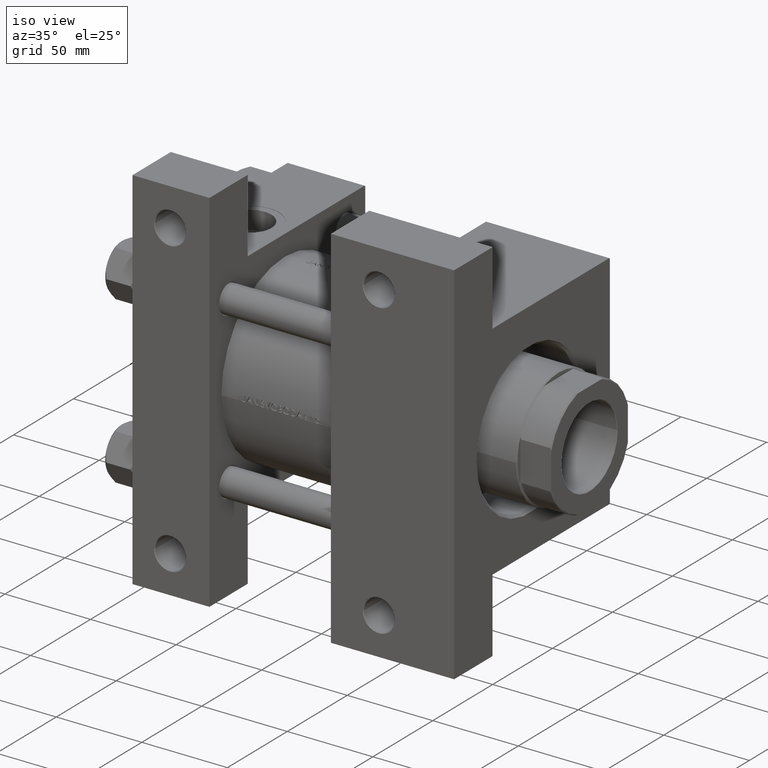
[diagram: clean part render]
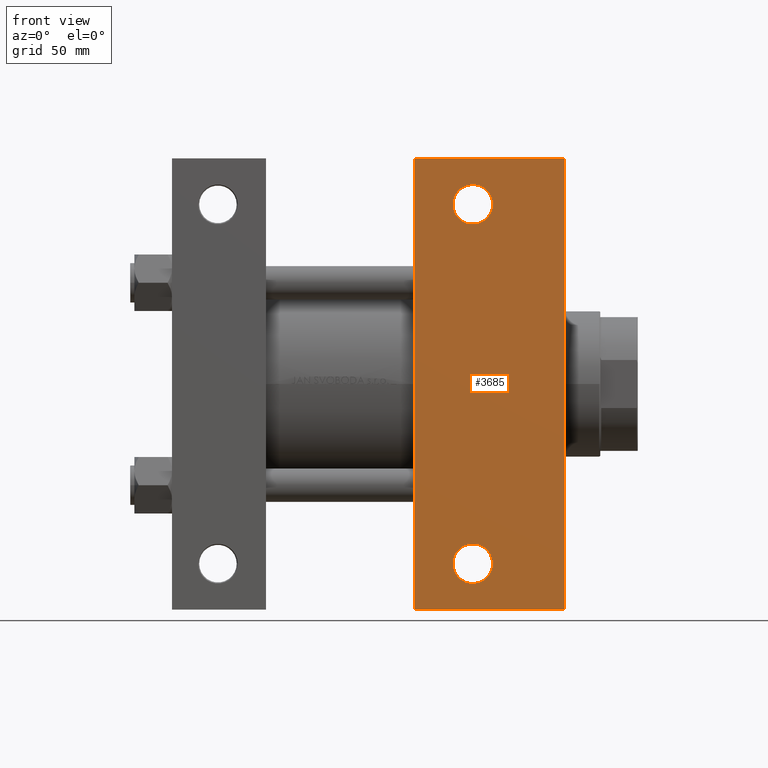
[diagram: tour spotlight — one face highlighted and labeled with its STEP entity id]
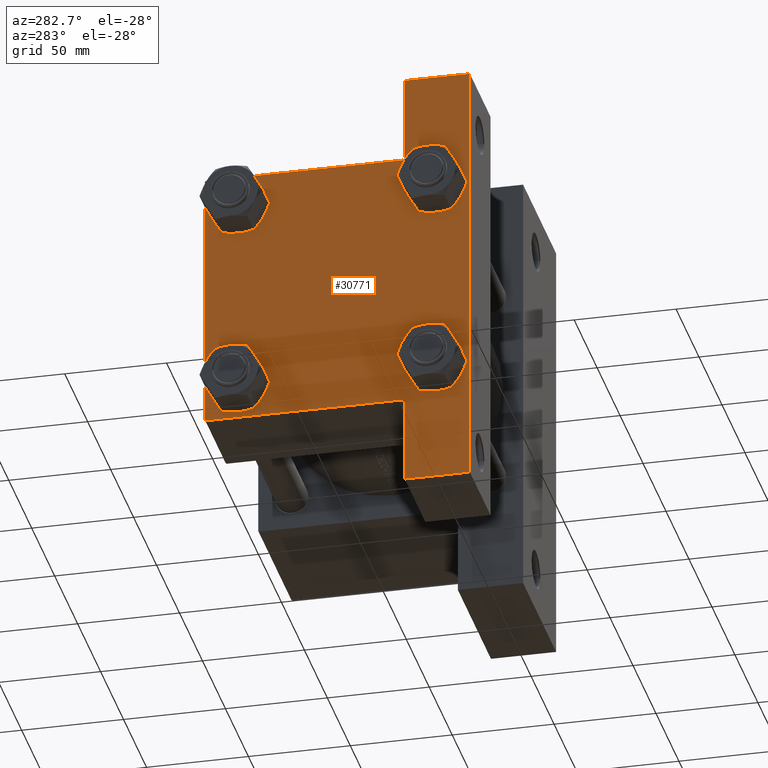
[diagram: tour spotlight — one face highlighted and labeled with its STEP entity id]
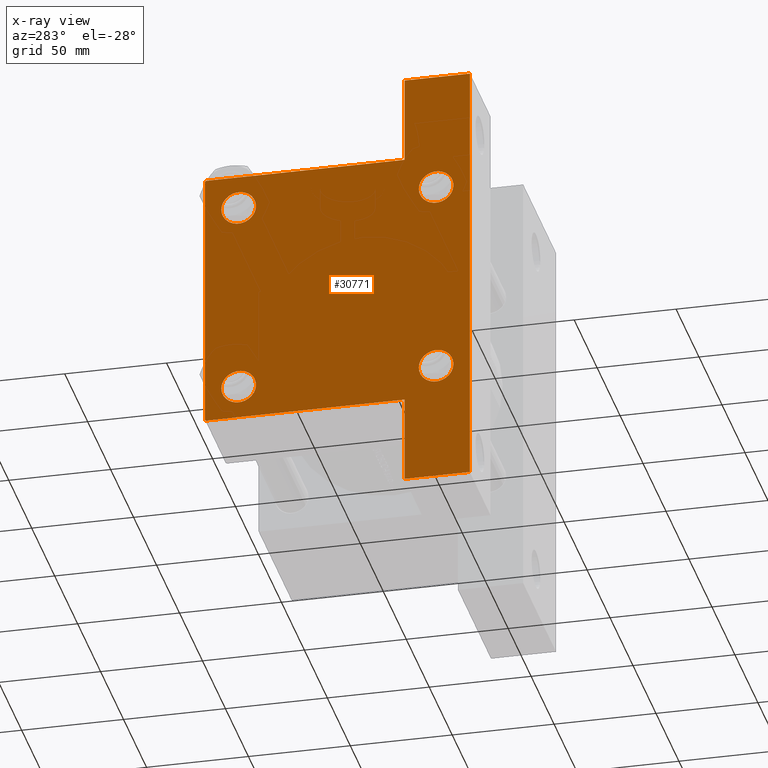
[diagram: x-ray of the same camera — body ghosted, this tour face saturated]
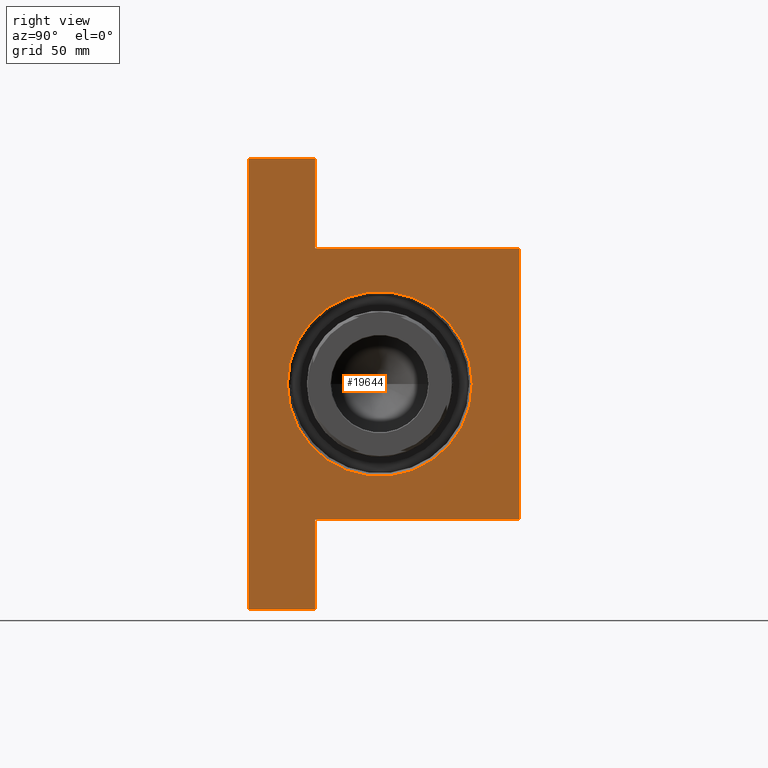
[diagram: tour spotlight — one face highlighted and labeled with its STEP entity id]
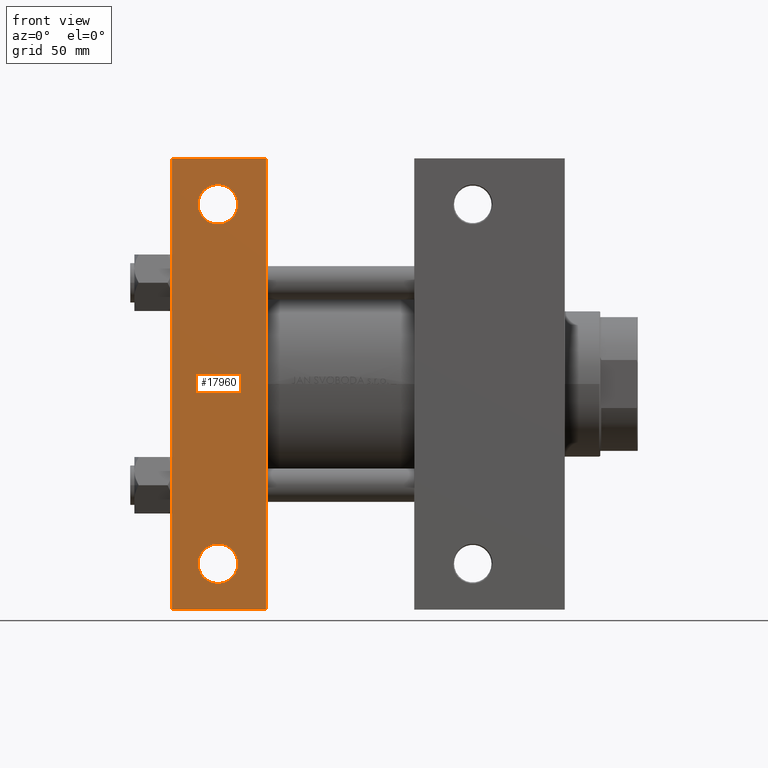
[diagram: tour spotlight — one face highlighted and labeled with its STEP entity id]
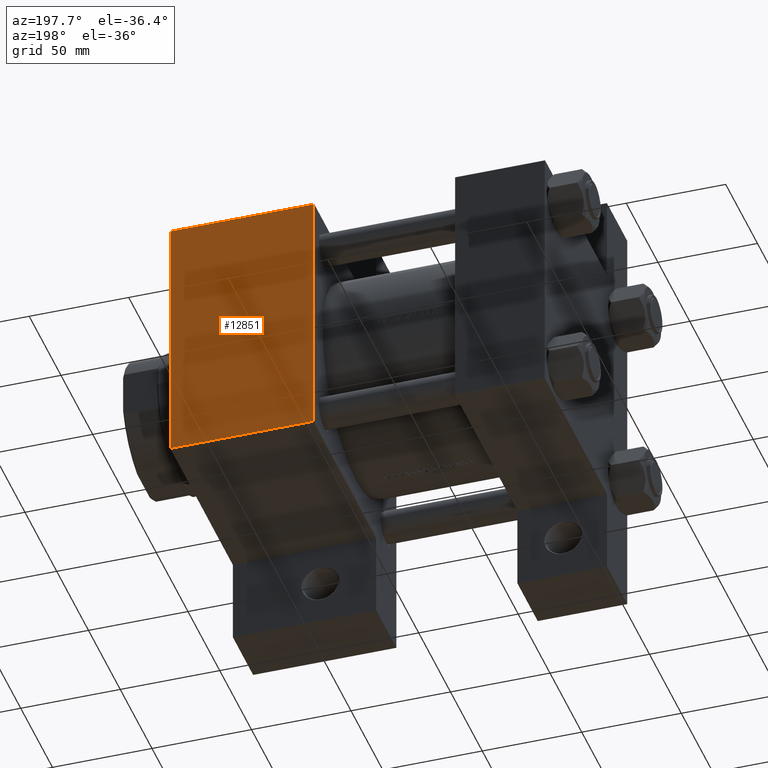
[diagram: tour spotlight — one face highlighted and labeled with its STEP entity id]
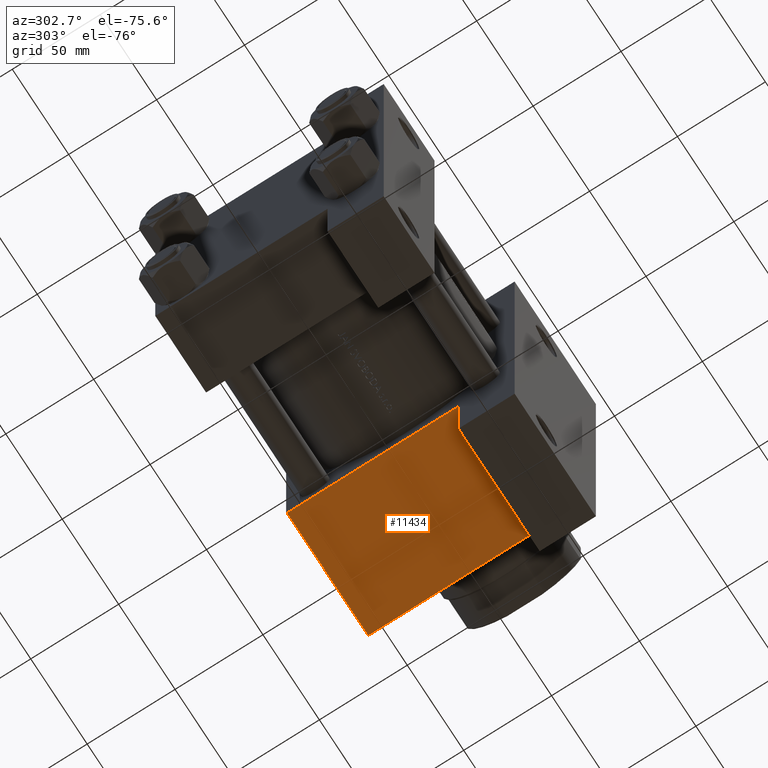
[diagram: tour spotlight — one face highlighted and labeled with its STEP entity id]
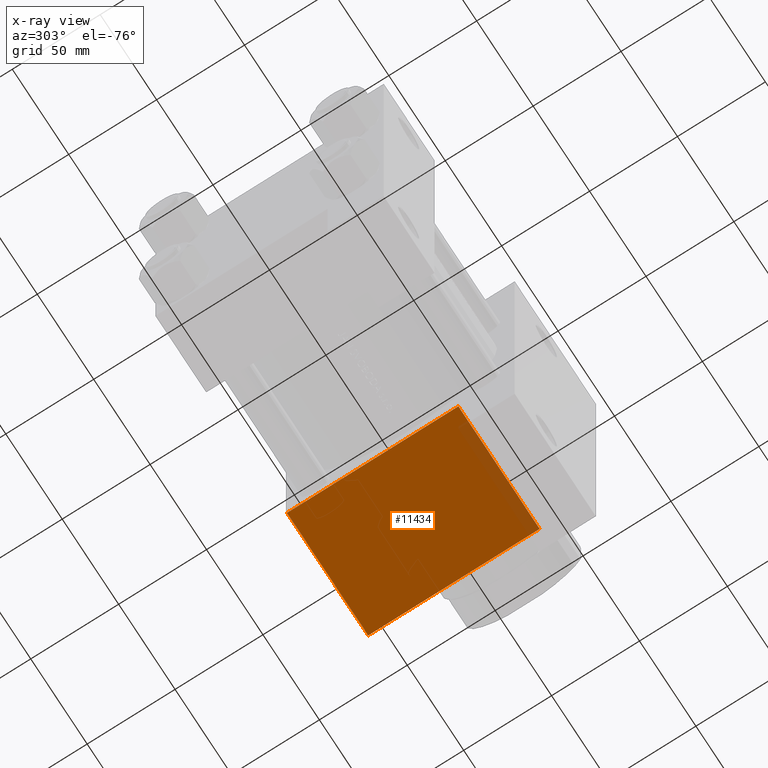
[diagram: x-ray of the same camera — body ghosted, this tour face saturated]
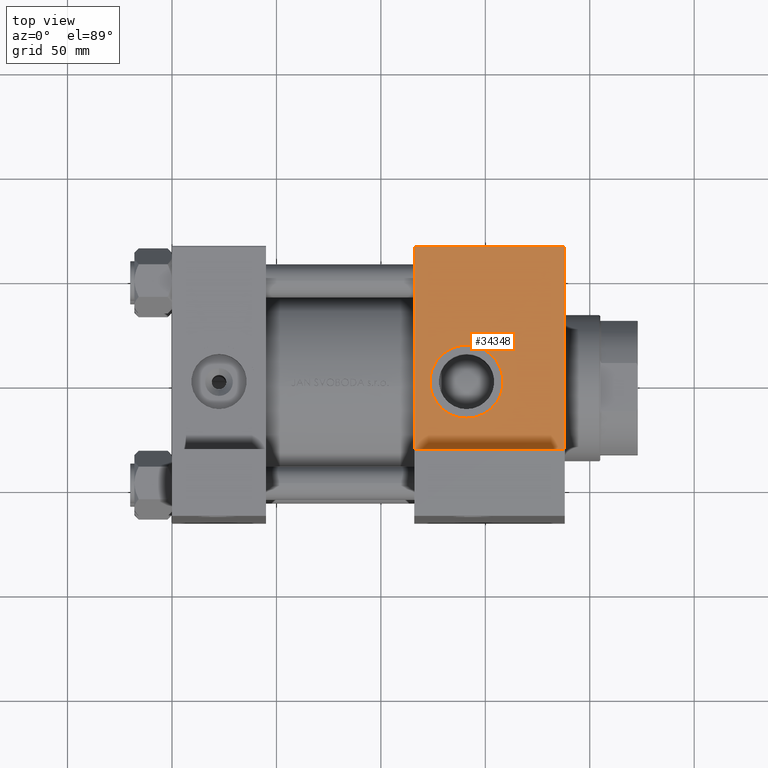
[diagram: tour spotlight — one face highlighted and labeled with its STEP entity id]
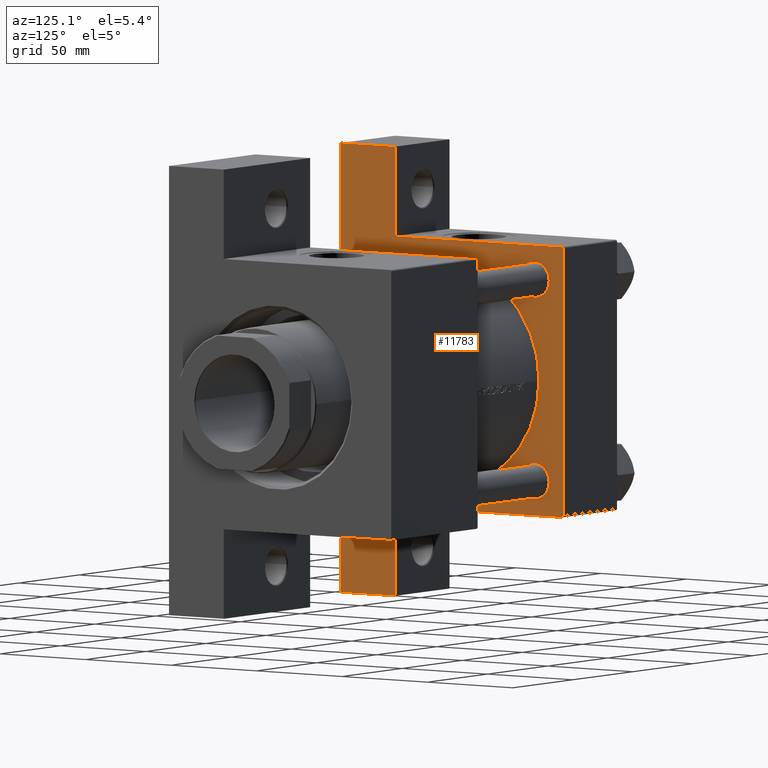
[diagram: tour spotlight — one face highlighted and labeled with its STEP entity id]
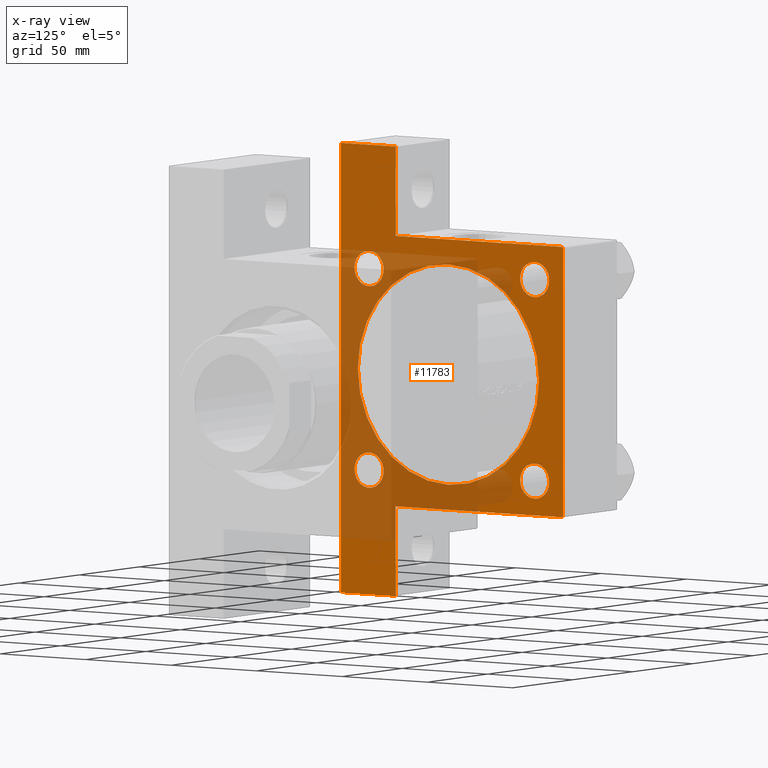
[diagram: x-ray of the same camera — body ghosted, this tour face saturated]
A machine part: a face-by-face anatomy tour. The part has 1135 B-rep faces; the first image is the clean iso view, then the 8 largest visible faces are spotlighted one at a time (largest first), each with its STEP entity span.

Face 1 — front view, entity #3685. In plain terms, the highlighted planar face has unit normal (0, -1, -0).
Definition (entity closure, byte-faithful):
#808 = AXIS2_PLACEMENT_3D ( 'NONE', #13969, #1849, #39044 ) ;
#1849 = DIRECTION ( 'NONE',  ( 0.000000000000000000, 2.135044278125300850E-16, -1.000000000000000000 ) ) ;
#2352 = CIRCLE ( 'NONE', #42808, 9.499499999999938993 ) ;
#2447 = EDGE_CURVE ( 'NONE', #20011, #12848, #2352, .T. ) ;
#2811 = PLANE ( 'NONE',  #808 ) ;
#2940 = CARTESIAN_POINT ( 'NONE',  ( 116.0000000000000000, 108.0000000000000000, -65.00000000000000000 ) ) ;
#3685 = ADVANCED_FACE ( 'NONE', ( #32473, #10072, #24440 ), #2811, .T. ) ;
#4010 = AXIS2_PLACEMENT_3D ( 'NONE', #44322, #40685, #7378 ) ;
#5141 = EDGE_CURVE ( 'NONE', #12848, #20011, #19458, .T. ) ;
#5198 = CARTESIAN_POINT ( 'NONE',  ( 144.0000000000000284, 86.00000000000000000, -64.99999999999998579 ) ) ;
#5629 = DIRECTION ( 'NONE',  ( 0.000000000000000000, 1.000000000000000000, 0.000000000000000000 ) ) ;
#5661 = EDGE_CURVE ( 'NONE', #27191, #6695, #46680, .T. ) ;
#6236 = VECTOR ( 'NONE', #7071, 1000.000000000000000 ) ;
#6695 = VERTEX_POINT ( 'NONE', #26571 ) ;
#7071 = DIRECTION ( 'NONE',  ( 1.000000000000000000, -3.854941057726239576E-16, 0.000000000000000000 ) ) ;
#7378 = DIRECTION ( 'NONE',  ( 0.000000000000000000, 1.000000000000000000, 0.000000000000000000 ) ) ;
#7388 = CARTESIAN_POINT ( 'NONE',  ( 144.0000000000000284, -86.00000000000000000, -65.00000000000001421 ) ) ;
#7812 = AXIS2_PLACEMENT_3D ( 'NONE', #24810, #20441, #5629 ) ;
#8322 = DIRECTION ( 'NONE',  ( 0.000000000000000000, 1.000000000000000000, 0.000000000000000000 ) ) ;
#10072 = FACE_BOUND ( 'NONE', #25061, .T. ) ;
#11429 = CARTESIAN_POINT ( 'NONE',  ( 115.9999999999999716, -107.9999999999999716, -65.00000000000000000 ) ) ;
#11446 = ORIENTED_EDGE ( 'NONE', *, *, #22128, .F. ) ;
#11510 = VERTEX_POINT ( 'NONE', #30069 ) ;
#12422 = EDGE_LOOP ( 'NONE', ( #11446, #25411, #30382, #25644 ) ) ;
#12848 = VERTEX_POINT ( 'NONE', #15903 ) ;
#13969 = CARTESIAN_POINT ( 'NONE',  ( 188.0000000000000000, 65.00000000000002842, -64.99999999999998579 ) ) ;
#14603 = LINE ( 'NONE', #11429, #46295 ) ;
#15903 = CARTESIAN_POINT ( 'NONE',  ( 153.4994999999999550, -86.00000000000000000, -65.00000000000001421 ) ) ;
#16885 = DIRECTION ( 'NONE',  ( 0.000000000000000000, -1.000000000000000000, -2.135044278125300850E-16 ) ) ;
#17048 = VECTOR ( 'NONE', #16885, 1000.000000000000000 ) ;
#18126 = EDGE_CURVE ( 'NONE', #6695, #27191, #46953, .T. ) ;
#19458 = CIRCLE ( 'NONE', #7812, 9.499499999999938993 ) ;
#19519 = DIRECTION ( 'NONE',  ( 0.000000000000000000, 1.000000000000000000, 0.000000000000000000 ) ) ;
#19859 = CARTESIAN_POINT ( 'NONE',  ( 153.4994999999998129, 86.00000000000000000, -64.99999999999998579 ) ) ;
#20011 = VERTEX_POINT ( 'NONE', #30436 ) ;
#20441 = DIRECTION ( 'NONE',  ( -0.000000000000000000, -2.135044278125300850E-16, 1.000000000000000000 ) ) ;
#21107 = CARTESIAN_POINT ( 'NONE',  ( 115.9999999999999716, -107.9999999999999716, -65.00000000000000000 ) ) ;
#22128 = EDGE_CURVE ( 'NONE', #41497, #32889, #34180, .T. ) ;
#23704 = CARTESIAN_POINT ( 'NONE',  ( 115.9999999999999858, 65.00000000000002842, -64.99999999999998579 ) ) ;
#24186 = LINE ( 'NONE', #46314, #17048 ) ;
#24440 = FACE_OUTER_BOUND ( 'NONE', #12422, .T. ) ;
#24810 = CARTESIAN_POINT ( 'NONE',  ( 144.0000000000000284, -86.00000000000000000, -65.00000000000001421 ) ) ;
#25052 = LINE ( 'NONE', #2940, #6236 ) ;
#25061 = EDGE_LOOP ( 'NONE', ( #32925, #29216 ) ) ;
#25365 = VECTOR ( 'NONE', #27590, 1000.000000000000000 ) ;
#25411 = ORIENTED_EDGE ( 'NONE', *, *, #41030, .T. ) ;
#25474 = ORIENTED_EDGE ( 'NONE', *, *, #18126, .T. ) ;
#25644 = ORIENTED_EDGE ( 'NONE', *, *, #26785, .T. ) ;
#25858 = DIRECTION ( 'NONE',  ( -0.000000000000000000, -2.135044278125300850E-16, 1.000000000000000000 ) ) ;
#26571 = CARTESIAN_POINT ( 'NONE',  ( 134.5005000000002156, 86.00000000000000000, -64.99999999999998579 ) ) ;
#26785 = EDGE_CURVE ( 'NONE', #11510, #32889, #14603, .T. ) ;
#27191 = VERTEX_POINT ( 'NONE', #19859 ) ;
#27467 = CARTESIAN_POINT ( 'NONE',  ( 187.9999999999999716, 107.9999999999999716, -65.00000000000000000 ) ) ;
#27590 = DIRECTION ( 'NONE',  ( 0.000000000000000000, -1.000000000000000000, -2.135044278125300850E-16 ) ) ;
#29216 = ORIENTED_EDGE ( 'NONE', *, *, #5141, .T. ) ;
#29438 = DIRECTION ( 'NONE',  ( -1.000000000000000000, -0.000000000000000000, -0.000000000000000000 ) ) ;
#30018 = EDGE_LOOP ( 'NONE', ( #25474, #34349 ) ) ;
#30069 = CARTESIAN_POINT ( 'NONE',  ( 187.9999999999999432, -107.9999999999999716, -65.00000000000000000 ) ) ;
#30382 = ORIENTED_EDGE ( 'NONE', *, *, #39311, .T. ) ;
#30436 = CARTESIAN_POINT ( 'NONE',  ( 134.5005000000000734, -86.00000000000000000, -65.00000000000001421 ) ) ;
#32473 = FACE_BOUND ( 'NONE', #30018, .T. ) ;
#32889 = VERTEX_POINT ( 'NONE', #21107 ) ;
#32925 = ORIENTED_EDGE ( 'NONE', *, *, #2447, .T. ) ;
#34180 = LINE ( 'NONE', #23704, #25365 ) ;
#34349 = ORIENTED_EDGE ( 'NONE', *, *, #5661, .T. ) ;
#35357 = VERTEX_POINT ( 'NONE', #27467 ) ;
#39044 = DIRECTION ( 'NONE',  ( 0.000000000000000000, 1.000000000000000000, 2.135044278125300850E-16 ) ) ;
#39311 = EDGE_CURVE ( 'NONE', #35357, #11510, #24186, .T. ) ;
#39539 = CARTESIAN_POINT ( 'NONE',  ( 116.0000000000000000, 108.0000000000000000, -65.00000000000000000 ) ) ;
#40685 = DIRECTION ( 'NONE',  ( -0.000000000000000000, -2.135044278125300850E-16, 1.000000000000000000 ) ) ;
#41030 = EDGE_CURVE ( 'NONE', #41497, #35357, #25052, .T. ) ;
#41497 = VERTEX_POINT ( 'NONE', #39539 ) ;
#42305 = AXIS2_PLACEMENT_3D ( 'NONE', #5198, #42390, #19519 ) ;
#42390 = DIRECTION ( 'NONE',  ( -0.000000000000000000, -2.135044278125300850E-16, 1.000000000000000000 ) ) ;
#42808 = AXIS2_PLACEMENT_3D ( 'NONE', #7388, #25858, #8322 ) ;
#44322 = CARTESIAN_POINT ( 'NONE',  ( 144.0000000000000284, 86.00000000000000000, -64.99999999999998579 ) ) ;
#46295 = VECTOR ( 'NONE', #29438, 1000.000000000000000 ) ;
#46314 = CARTESIAN_POINT ( 'NONE',  ( 188.0000000000000000, 65.00000000000002842, -64.99999999999998579 ) ) ;
#46680 = CIRCLE ( 'NONE', #4010, 9.499499999999800437 ) ;
#46953 = CIRCLE ( 'NONE', #42305, 9.499499999999800437 ) ;

Face 2 — auxiliary view, entity #30771. An x-ray twin of the same camera follows (body ghosted, this face saturated) — the face is partly hidden behind the body. In plain terms, the highlighted planar face has unit normal (-1, 0, -0).
Definition (entity closure, byte-faithful):
#300 = DIRECTION ( 'NONE',  ( 0.000000000000000000, 0.000000000000000000, 1.000000000000000000 ) ) ;
#372 = CARTESIAN_POINT ( 'NONE',  ( 2.598273009909439483E-14, 108.0000000000000284, -33.00000000000000000 ) ) ;
#576 = CARTESIAN_POINT ( 'NONE',  ( 0.000000000000000000, 48.45000000000000995, -56.95000000000002416 ) ) ;
#1030 = VERTEX_POINT ( 'NONE', #5038 ) ;
#1036 = CARTESIAN_POINT ( 'NONE',  ( 0.000000000000000000, 64.74999999999998579, 64.74999999999998579 ) ) ;
#2279 = VERTEX_POINT ( 'NONE', #20279 ) ;
#2297 = VECTOR ( 'NONE', #10669, 1000.000000000000000 ) ;
#2698 = CARTESIAN_POINT ( 'NONE',  ( 0.000000000000000000, -48.44999999999999574, 39.95000000000001705 ) ) ;
#2752 = ORIENTED_EDGE ( 'NONE', *, *, #16214, .T. ) ;
#2911 = LINE ( 'NONE', #17725, #2297 ) ;
#2932 = DIRECTION ( 'NONE',  ( 0.000000000000000000, 0.000000000000000000, 1.000000000000000000 ) ) ;
#3070 = CARTESIAN_POINT ( 'NONE',  ( 2.598273009909439798E-14, 108.0000000000000426, -33.00000000000000000 ) ) ;
#3170 = LINE ( 'NONE', #17989, #9276 ) ;
#3260 = AXIS2_PLACEMENT_3D ( 'NONE', #46423, #28426, #16281 ) ;
#3755 = AXIS2_PLACEMENT_3D ( 'NONE', #38643, #31342, #20618 ) ;
#4352 = EDGE_CURVE ( 'NONE', #11924, #41867, #6513, .T. ) ;
#4417 = DIRECTION ( 'NONE',  ( -0.000000000000000000, 0.000000000000000000, 1.000000000000000000 ) ) ;
#4595 = ORIENTED_EDGE ( 'NONE', *, *, #13613, .F. ) ;
#4802 = EDGE_LOOP ( 'NONE', ( #45095, #24787 ) ) ;
#5038 = CARTESIAN_POINT ( 'NONE',  ( 0.000000000000000000, 48.45000000000000995, 39.95000000000000284 ) ) ;
#5519 = CARTESIAN_POINT ( 'NONE',  ( 0.000000000000000000, -64.49999999999997158, 65.00000000000000000 ) ) ;
#5765 = VECTOR ( 'NONE', #8070, 1000.000000000000114 ) ;
#6513 = LINE ( 'NONE', #43236, #33483 ) ;
#6561 = VECTOR ( 'NONE', #14954, 1000.000000000000000 ) ;
#6570 = DIRECTION ( 'NONE',  ( 1.000000000000000000, -0.000000000000000000, 0.000000000000000000 ) ) ;
#7272 = CIRCLE ( 'NONE', #46853, 8.500000000000007105 ) ;
#7564 = AXIS2_PLACEMENT_3D ( 'NONE', #22887, #45257, #4417 ) ;
#8070 = DIRECTION ( 'NONE',  ( 0.000000000000000000, 0.7071067811865474617, -0.7071067811865474617 ) ) ;
#9276 = VECTOR ( 'NONE', #28447, 1000.000000000000000 ) ;
#10669 = DIRECTION ( 'NONE',  ( 0.000000000000000000, -1.000000000000000000, -1.067522139062650425E-16 ) ) ;
#10688 = DIRECTION ( 'NONE',  ( 0.000000000000000000, 0.000000000000000000, -1.000000000000000000 ) ) ;
#11203 = EDGE_CURVE ( 'NONE', #31534, #11924, #33559, .T. ) ;
#11517 = CARTESIAN_POINT ( 'NONE',  ( 0.000000000000000000, 65.00000000000000000, 65.00000000000001421 ) ) ;
#11712 = LINE ( 'NONE', #1036, #5765 ) ;
#11905 = EDGE_CURVE ( 'NONE', #12812, #37456, #27738, .T. ) ;
#11923 = EDGE_CURVE ( 'NONE', #34599, #40426, #7272, .T. ) ;
#11924 = VERTEX_POINT ( 'NONE', #47174 ) ;
#12188 = VERTEX_POINT ( 'NONE', #27196 ) ;
#12293 = CARTESIAN_POINT ( 'NONE',  ( 0.000000000000000000, 48.45000000000000995, 48.45000000000001705 ) ) ;
#12812 = VERTEX_POINT ( 'NONE', #372 ) ;
#13005 = DIRECTION ( 'NONE',  ( 1.000000000000000000, -0.000000000000000000, 0.000000000000000000 ) ) ;
#13103 = EDGE_CURVE ( 'NONE', #26285, #27237, #11712, .T. ) ;
#13330 = ORIENTED_EDGE ( 'NONE', *, *, #4352, .F. ) ;
#13528 = VERTEX_POINT ( 'NONE', #5519 ) ;
#13613 = EDGE_CURVE ( 'NONE', #12812, #12188, #36144, .T. ) ;
#13876 = CARTESIAN_POINT ( 'NONE',  ( 2.598273009909439483E-14, 108.0000000000000284, -65.00000000000001421 ) ) ;
#14080 = DIRECTION ( 'NONE',  ( 1.000000000000000000, -0.000000000000000000, 0.000000000000000000 ) ) ;
#14954 = DIRECTION ( 'NONE',  ( -2.102829850353463349E-16, -1.000000000000000000, 0.000000000000000000 ) ) ;
#15152 = CIRCLE ( 'NONE', #42353, 8.500000000000007105 ) ;
#15284 = CARTESIAN_POINT ( 'NONE',  ( 0.000000000000000000, -65.00000000000000000, 65.00000000000000000 ) ) ;
#15683 = ORIENTED_EDGE ( 'NONE', *, *, #21031, .T. ) ;
#15697 = EDGE_CURVE ( 'NONE', #2279, #1030, #46996, .T. ) ;
#15833 = FACE_BOUND ( 'NONE', #23557, .T. ) ;
#15957 = VERTEX_POINT ( 'NONE', #27788 ) ;
#16214 = EDGE_CURVE ( 'NONE', #28861, #25537, #15152, .T. ) ;
#16281 = DIRECTION ( 'NONE',  ( 0.000000000000000000, 0.000000000000000000, 1.000000000000000000 ) ) ;
#16679 = AXIS2_PLACEMENT_3D ( 'NONE', #30174, #45251, #23846 ) ;
#16779 = VECTOR ( 'NONE', #37875, 1000.000000000000000 ) ;
#16780 = EDGE_CURVE ( 'NONE', #26285, #13528, #30240, .T. ) ;
#16934 = CARTESIAN_POINT ( 'NONE',  ( -4.696407624884288264E-16, -107.9999999999999858, 29.24146527838177079 ) ) ;
#17725 = CARTESIAN_POINT ( 'NONE',  ( 0.000000000000000000, 65.00000000000000000, -64.99999999999998579 ) ) ;
#17989 = CARTESIAN_POINT ( 'NONE',  ( 0.000000000000000000, 65.00000000000000000, 65.00000000000001421 ) ) ;
#18417 = EDGE_CURVE ( 'NONE', #15957, #31885, #37652, .T. ) ;
#20279 = CARTESIAN_POINT ( 'NONE',  ( 0.000000000000000000, 48.45000000000000995, 56.95000000000002416 ) ) ;
#20618 = DIRECTION ( 'NONE',  ( 0.000000000000000000, 0.000000000000000000, 1.000000000000000000 ) ) ;
#21031 = EDGE_CURVE ( 'NONE', #31534, #13528, #45643, .T. ) ;
#21760 = EDGE_LOOP ( 'NONE', ( #40331, #2752 ) ) ;
#21952 = CARTESIAN_POINT ( 'NONE',  ( 0.000000000000000000, 48.45000000000000995, -39.95000000000000284 ) ) ;
#21995 = EDGE_CURVE ( 'NONE', #41867, #24203, #32268, .T. ) ;
#22013 = DIRECTION ( 'NONE',  ( 0.000000000000000000, -1.000000000000000000, -1.067522139062650425E-16 ) ) ;
#22446 = AXIS2_PLACEMENT_3D ( 'NONE', #43265, #47382, #39612 ) ;
#22887 = CARTESIAN_POINT ( 'NONE',  ( 0.000000000000000000, 0.000000000000000000, 0.000000000000000000 ) ) ;
#23557 = EDGE_LOOP ( 'NONE', ( #25407, #44928 ) ) ;
#23596 = EDGE_LOOP ( 'NONE', ( #40578, #15683, #43594, #27319, #33751, #4595, #45323, #34321, #44125, #13330 ) ) ;
#23740 = EDGE_CURVE ( 'NONE', #1030, #2279, #26157, .T. ) ;
#23846 = DIRECTION ( 'NONE',  ( 0.000000000000000000, 0.000000000000000000, 1.000000000000000000 ) ) ;
#24083 = DIRECTION ( 'NONE',  ( 0.000000000000000000, -1.734723475976806848E-16, -1.000000000000000000 ) ) ;
#24203 = VERTEX_POINT ( 'NONE', #33252 ) ;
#24264 = DIRECTION ( 'NONE',  ( -3.464637479412410313E-17, -1.000000000000000000, 0.000000000000000000 ) ) ;
#24782 = DIRECTION ( 'NONE',  ( 0.000000000000000000, 0.000000000000000000, 1.000000000000000000 ) ) ;
#24787 = ORIENTED_EDGE ( 'NONE', *, *, #11923, .T. ) ;
#25025 = CARTESIAN_POINT ( 'NONE',  ( 0.000000000000000000, 48.45000000000000995, 48.45000000000001705 ) ) ;
#25203 = DIRECTION ( 'NONE',  ( 0.000000000000000000, -1.734723475976806848E-16, -1.000000000000000000 ) ) ;
#25407 = ORIENTED_EDGE ( 'NONE', *, *, #18417, .T. ) ;
#25537 = VERTEX_POINT ( 'NONE', #21952 ) ;
#25825 = DIRECTION ( 'NONE',  ( 1.000000000000000000, -0.000000000000000000, 0.000000000000000000 ) ) ;
#26157 = CIRCLE ( 'NONE', #28477, 8.500000000000007105 ) ;
#26285 = VERTEX_POINT ( 'NONE', #34836 ) ;
#26880 = VECTOR ( 'NONE', #25203, 1000.000000000000000 ) ;
#27196 = CARTESIAN_POINT ( 'NONE',  ( 0.000000000000000000, 65.00000000000000000, -33.00000000000000000 ) ) ;
#27237 = VERTEX_POINT ( 'NONE', #27640 ) ;
#27319 = ORIENTED_EDGE ( 'NONE', *, *, #13103, .T. ) ;
#27399 = CARTESIAN_POINT ( 'NONE',  ( 0.000000000000000000, -48.44999999999999574, -56.95000000000003837 ) ) ;
#27640 = CARTESIAN_POINT ( 'NONE',  ( 0.000000000000000000, 65.00000000000000000, 64.49999999999998579 ) ) ;
#27738 = LINE ( 'NONE', #28448, #41451 ) ;
#27788 = CARTESIAN_POINT ( 'NONE',  ( 0.000000000000000000, -48.44999999999999574, 56.95000000000003837 ) ) ;
#27844 = DIRECTION ( 'NONE',  ( 0.000000000000000000, 0.000000000000000000, 1.000000000000000000 ) ) ;
#28426 = DIRECTION ( 'NONE',  ( 1.000000000000000000, -0.000000000000000000, 0.000000000000000000 ) ) ;
#28447 = DIRECTION ( 'NONE',  ( 0.000000000000000000, 0.000000000000000000, -1.000000000000000000 ) ) ;
#28448 = CARTESIAN_POINT ( 'NONE',  ( 2.598273009909439483E-14, 108.0000000000000426, 29.24146527838174237 ) ) ;
#28477 = AXIS2_PLACEMENT_3D ( 'NONE', #25025, #14080, #24782 ) ;
#28513 = CARTESIAN_POINT ( 'NONE',  ( 0.000000000000000000, -65.00000000000000000, 64.50000000000000000 ) ) ;
#28861 = VERTEX_POINT ( 'NONE', #576 ) ;
#30174 = CARTESIAN_POINT ( 'NONE',  ( 0.000000000000000000, -48.44999999999999574, 48.45000000000003126 ) ) ;
#30240 = LINE ( 'NONE', #11517, #36075 ) ;
#30424 = FACE_BOUND ( 'NONE', #4802, .T. ) ;
#30771 = ADVANCED_FACE ( 'NONE', ( #15833, #30424, #30912, #45740, #37492 ), #34815, .T. ) ;
#30912 = FACE_BOUND ( 'NONE', #21760, .T. ) ;
#31342 = DIRECTION ( 'NONE',  ( 1.000000000000000000, -0.000000000000000000, 0.000000000000000000 ) ) ;
#31484 = AXIS2_PLACEMENT_3D ( 'NONE', #12293, #13005, #27844 ) ;
#31534 = VERTEX_POINT ( 'NONE', #28513 ) ;
#31885 = VERTEX_POINT ( 'NONE', #2698 ) ;
#32085 = EDGE_CURVE ( 'NONE', #40426, #34599, #45666, .T. ) ;
#32251 = EDGE_LOOP ( 'NONE', ( #46286, #41187 ) ) ;
#32268 = LINE ( 'NONE', #16934, #26880 ) ;
#33252 = CARTESIAN_POINT ( 'NONE',  ( -4.696407624884288264E-16, -108.0000000000000000, -64.99999999999998579 ) ) ;
#33483 = VECTOR ( 'NONE', #24264, 1000.000000000000000 ) ;
#33559 = LINE ( 'NONE', #15284, #46053 ) ;
#33751 = ORIENTED_EDGE ( 'NONE', *, *, #40005, .T. ) ;
#34321 = ORIENTED_EDGE ( 'NONE', *, *, #38615, .T. ) ;
#34599 = VERTEX_POINT ( 'NONE', #27399 ) ;
#34815 = PLANE ( 'NONE',  #7564 ) ;
#34836 = CARTESIAN_POINT ( 'NONE',  ( 0.000000000000000000, 64.49999999999997158, 65.00000000000001421 ) ) ;
#36075 = VECTOR ( 'NONE', #22013, 1000.000000000000000 ) ;
#36144 = LINE ( 'NONE', #3070, #6561 ) ;
#37456 = VERTEX_POINT ( 'NONE', #13876 ) ;
#37492 = FACE_OUTER_BOUND ( 'NONE', #23596, .T. ) ;
#37652 = CIRCLE ( 'NONE', #16679, 8.500000000000007105 ) ;
#37828 = EDGE_CURVE ( 'NONE', #31885, #15957, #41050, .T. ) ;
#37875 = DIRECTION ( 'NONE',  ( -0.000000000000000000, 0.7071067811865672237, 0.7071067811865279218 ) ) ;
#38615 = EDGE_CURVE ( 'NONE', #37456, #24203, #2911, .T. ) ;
#38643 = CARTESIAN_POINT ( 'NONE',  ( 0.000000000000000000, -48.44999999999999574, -48.45000000000003126 ) ) ;
#39612 = DIRECTION ( 'NONE',  ( 0.000000000000000000, 0.000000000000000000, 1.000000000000000000 ) ) ;
#40005 = EDGE_CURVE ( 'NONE', #27237, #12188, #3170, .T. ) ;
#40331 = ORIENTED_EDGE ( 'NONE', *, *, #46169, .T. ) ;
#40426 = VERTEX_POINT ( 'NONE', #43721 ) ;
#40578 = ORIENTED_EDGE ( 'NONE', *, *, #11203, .F. ) ;
#41050 = CIRCLE ( 'NONE', #22446, 8.500000000000007105 ) ;
#41187 = ORIENTED_EDGE ( 'NONE', *, *, #23740, .T. ) ;
#41451 = VECTOR ( 'NONE', #24083, 1000.000000000000000 ) ;
#41867 = VERTEX_POINT ( 'NONE', #44557 ) ;
#42098 = CIRCLE ( 'NONE', #3260, 8.500000000000007105 ) ;
#42353 = AXIS2_PLACEMENT_3D ( 'NONE', #47708, #25825, #300 ) ;
#43236 = CARTESIAN_POINT ( 'NONE',  ( -4.696407624884284320E-16, -107.9999999999999858, -33.00000000000000000 ) ) ;
#43265 = CARTESIAN_POINT ( 'NONE',  ( 0.000000000000000000, -48.44999999999999574, 48.45000000000003126 ) ) ;
#43594 = ORIENTED_EDGE ( 'NONE', *, *, #16780, .F. ) ;
#43721 = CARTESIAN_POINT ( 'NONE',  ( 0.000000000000000000, -48.44999999999999574, -39.95000000000001705 ) ) ;
#44125 = ORIENTED_EDGE ( 'NONE', *, *, #21995, .F. ) ;
#44557 = CARTESIAN_POINT ( 'NONE',  ( -4.696407624884288264E-16, -108.0000000000000000, -33.00000000000000000 ) ) ;
#44928 = ORIENTED_EDGE ( 'NONE', *, *, #37828, .T. ) ;
#45095 = ORIENTED_EDGE ( 'NONE', *, *, #32085, .T. ) ;
#45251 = DIRECTION ( 'NONE',  ( 1.000000000000000000, -0.000000000000000000, 0.000000000000000000 ) ) ;
#45257 = DIRECTION ( 'NONE',  ( -1.000000000000000000, 0.000000000000000000, -0.000000000000000000 ) ) ;
#45323 = ORIENTED_EDGE ( 'NONE', *, *, #11905, .T. ) ;
#45643 = LINE ( 'NONE', #46115, #16779 ) ;
#45666 = CIRCLE ( 'NONE', #3755, 8.500000000000007105 ) ;
#45740 = FACE_BOUND ( 'NONE', #32251, .T. ) ;
#46053 = VECTOR ( 'NONE', #10688, 1000.000000000000000 ) ;
#46115 = CARTESIAN_POINT ( 'NONE',  ( -0.000000000000000000, -64.74999999999819522, 64.75000000000179057 ) ) ;
#46169 = EDGE_CURVE ( 'NONE', #25537, #28861, #42098, .T. ) ;
#46286 = ORIENTED_EDGE ( 'NONE', *, *, #15697, .T. ) ;
#46423 = CARTESIAN_POINT ( 'NONE',  ( 0.000000000000000000, 48.45000000000000995, -48.45000000000001705 ) ) ;
#46446 = CARTESIAN_POINT ( 'NONE',  ( 0.000000000000000000, -48.44999999999999574, -48.45000000000003126 ) ) ;
#46853 = AXIS2_PLACEMENT_3D ( 'NONE', #46446, #6570, #2932 ) ;
#46996 = CIRCLE ( 'NONE', #31484, 8.500000000000007105 ) ;
#47174 = CARTESIAN_POINT ( 'NONE',  ( 1.020153353658907479E-15, -65.00000000000000000, -33.00000000000000000 ) ) ;
#47382 = DIRECTION ( 'NONE',  ( 1.000000000000000000, -0.000000000000000000, 0.000000000000000000 ) ) ;
#47708 = CARTESIAN_POINT ( 'NONE',  ( 0.000000000000000000, 48.45000000000000995, -48.45000000000001705 ) ) ;

Face 3 — right view, entity #19644. In plain terms, the highlighted planar face has unit normal (-1, 0, -0).
Definition (entity closure, byte-faithful):
#759 = ORIENTED_EDGE ( 'NONE', *, *, #39311, .F. ) ;
#769 = DIRECTION ( 'NONE',  ( 0.000000000000000000, 0.000000000000000000, 1.000000000000000000 ) ) ;
#814 = LINE ( 'NONE', #21983, #19170 ) ;
#1321 = CARTESIAN_POINT ( 'NONE',  ( 187.9999999999999716, 64.99999999999998579, -33.00000000000000000 ) ) ;
#2696 = CARTESIAN_POINT ( 'NONE',  ( 188.0000000000000000, 5.419062086227025573E-15, 42.24999999999991473 ) ) ;
#2812 = ORIENTED_EDGE ( 'NONE', *, *, #23283, .T. ) ;
#3121 = DIRECTION ( 'NONE',  ( -1.000000000000000000, 0.000000000000000000, -0.000000000000000000 ) ) ;
#3508 = DIRECTION ( 'NONE',  ( -0.000000000000000000, -1.000000000000000000, -0.000000000000000000 ) ) ;
#4281 = LINE ( 'NONE', #19094, #4329 ) ;
#4329 = VECTOR ( 'NONE', #29815, 1000.000000000000000 ) ;
#4459 = CARTESIAN_POINT ( 'NONE',  ( 188.0000000000000000, 65.00000000000002842, 65.00000000000001421 ) ) ;
#4682 = ORIENTED_EDGE ( 'NONE', *, *, #18020, .T. ) ;
#4844 = CARTESIAN_POINT ( 'NONE',  ( 187.9999999999999432, -107.9999999999999716, -33.00000000000000000 ) ) ;
#4900 = ORIENTED_EDGE ( 'NONE', *, *, #10802, .F. ) ;
#5101 = AXIS2_PLACEMENT_3D ( 'NONE', #36198, #3121, #40080 ) ;
#5737 = ORIENTED_EDGE ( 'NONE', *, *, #12147, .T. ) ;
#5755 = CARTESIAN_POINT ( 'NONE',  ( 188.0000000000000000, -64.99999999999998579, 64.50000000000002842 ) ) ;
#7341 = CARTESIAN_POINT ( 'NONE',  ( 188.0000000000000000, 0.000000000000000000, -46.24999999999988631 ) ) ;
#8184 = VECTOR ( 'NONE', #14152, 1000.000000000000114 ) ;
#9775 = EDGE_CURVE ( 'NONE', #33685, #18877, #41421, .T. ) ;
#10010 = CARTESIAN_POINT ( 'NONE',  ( 188.0000000000000000, 64.50000000000002842, 65.00000000000001421 ) ) ;
#10258 = CARTESIAN_POINT ( 'NONE',  ( 187.9999999999999716, 107.9999999999999716, -33.00000000000000000 ) ) ;
#10334 = ORIENTED_EDGE ( 'NONE', *, *, #16096, .T. ) ;
#10467 = AXIS2_PLACEMENT_3D ( 'NONE', #19225, #34077, #769 ) ;
#10706 = ORIENTED_EDGE ( 'NONE', *, *, #48035, .T. ) ;
#10802 = EDGE_CURVE ( 'NONE', #39859, #35357, #41909, .T. ) ;
#11040 = DIRECTION ( 'NONE',  ( -1.000000000000000000, 0.000000000000000000, -0.000000000000000000 ) ) ;
#11084 = VECTOR ( 'NONE', #21924, 1000.000000000000000 ) ;
#11139 = VECTOR ( 'NONE', #41315, 1000.000000000000000 ) ;
#11246 = CARTESIAN_POINT ( 'NONE',  ( 188.0000000000000000, 65.00000000000002842, 64.50000000000001421 ) ) ;
#11356 = FACE_OUTER_BOUND ( 'NONE', #40147, .T. ) ;
#11505 = DIRECTION ( 'NONE',  ( 0.000000000000000000, 0.000000000000000000, 1.000000000000000000 ) ) ;
#11510 = VERTEX_POINT ( 'NONE', #30069 ) ;
#12147 = EDGE_CURVE ( 'NONE', #28631, #11510, #38158, .T. ) ;
#13344 = EDGE_LOOP ( 'NONE', ( #4682, #18678 ) ) ;
#13463 = EDGE_CURVE ( 'NONE', #25542, #43298, #38821, .T. ) ;
#13492 = VECTOR ( 'NONE', #42474, 999.9999999999998863 ) ;
#14152 = DIRECTION ( 'NONE',  ( 0.000000000000000000, -0.7071067811865474617, 0.7071067811865474617 ) ) ;
#14793 = ORIENTED_EDGE ( 'NONE', *, *, #34010, .T. ) ;
#15123 = CIRCLE ( 'NONE', #41511, 44.24999999999990052 ) ;
#16096 = EDGE_CURVE ( 'NONE', #33685, #37253, #31682, .T. ) ;
#16885 = DIRECTION ( 'NONE',  ( 0.000000000000000000, -1.000000000000000000, -2.135044278125300850E-16 ) ) ;
#17048 = VECTOR ( 'NONE', #16885, 1000.000000000000000 ) ;
#17125 = CARTESIAN_POINT ( 'NONE',  ( 187.9999999999999432, -107.9999999999999716, -33.00000000000000000 ) ) ;
#17354 = CARTESIAN_POINT ( 'NONE',  ( 188.0000000000000000, 64.50000000000002842, 65.00000000000001421 ) ) ;
#17782 = CARTESIAN_POINT ( 'NONE',  ( 187.9999999999999716, 107.9999999999999716, -33.00000000000000000 ) ) ;
#18020 = EDGE_CURVE ( 'NONE', #23627, #30928, #15123, .T. ) ;
#18373 = EDGE_CURVE ( 'NONE', #30928, #23627, #26739, .T. ) ;
#18654 = FACE_BOUND ( 'NONE', #13344, .T. ) ;
#18678 = ORIENTED_EDGE ( 'NONE', *, *, #18373, .T. ) ;
#18877 = VERTEX_POINT ( 'NONE', #1321 ) ;
#19094 = CARTESIAN_POINT ( 'NONE',  ( 188.0000000000000000, 65.00000000000002842, 65.00000000000001421 ) ) ;
#19170 = VECTOR ( 'NONE', #3508, 1000.000000000000000 ) ;
#19225 = CARTESIAN_POINT ( 'NONE',  ( 188.0000000000000000, 0.000000000000000000, -1.999999999999988010 ) ) ;
#19239 = VERTEX_POINT ( 'NONE', #29417 ) ;
#19644 = ADVANCED_FACE ( 'NONE', ( #18654, #11356 ), #36438, .F. ) ;
#20377 = EDGE_CURVE ( 'NONE', #37253, #25542, #4281, .T. ) ;
#20688 = CARTESIAN_POINT ( 'NONE',  ( 188.0000000000000000, -64.99999999999998579, 65.00000000000000000 ) ) ;
#21404 = ORIENTED_EDGE ( 'NONE', *, *, #13463, .T. ) ;
#21924 = DIRECTION ( 'NONE',  ( 0.000000000000000000, -1.000000000000000000, 0.000000000000000000 ) ) ;
#21983 = CARTESIAN_POINT ( 'NONE',  ( 187.9999999999999432, -107.9999999999999716, -33.00000000000000000 ) ) ;
#22002 = CARTESIAN_POINT ( 'NONE',  ( 188.0000000000000000, -64.99999999999998579, 64.50000000000002842 ) ) ;
#23283 = EDGE_CURVE ( 'NONE', #19239, #28631, #814, .T. ) ;
#23627 = VERTEX_POINT ( 'NONE', #7341 ) ;
#24186 = LINE ( 'NONE', #46314, #17048 ) ;
#25542 = VERTEX_POINT ( 'NONE', #34025 ) ;
#26739 = CIRCLE ( 'NONE', #10467, 44.24999999999990052 ) ;
#27467 = CARTESIAN_POINT ( 'NONE',  ( 187.9999999999999716, 107.9999999999999716, -65.00000000000000000 ) ) ;
#28631 = VERTEX_POINT ( 'NONE', #17125 ) ;
#29417 = CARTESIAN_POINT ( 'NONE',  ( 188.0000000000000000, -64.99999999999998579, -33.00000000000000000 ) ) ;
#29815 = DIRECTION ( 'NONE',  ( 0.000000000000000000, -1.000000000000000000, -1.067522139062650425E-16 ) ) ;
#30069 = CARTESIAN_POINT ( 'NONE',  ( 187.9999999999999432, -107.9999999999999716, -65.00000000000000000 ) ) ;
#30928 = VERTEX_POINT ( 'NONE', #2696 ) ;
#31682 = LINE ( 'NONE', #10010, #8184 ) ;
#31757 = VECTOR ( 'NONE', #35544, 1000.000000000000000 ) ;
#32080 = VECTOR ( 'NONE', #43112, 1000.000000000000000 ) ;
#33662 = DIRECTION ( 'NONE',  ( 0.000000000000000000, 0.000000000000000000, -1.000000000000000000 ) ) ;
#33685 = VERTEX_POINT ( 'NONE', #11246 ) ;
#34010 = EDGE_CURVE ( 'NONE', #43298, #19239, #39422, .T. ) ;
#34025 = CARTESIAN_POINT ( 'NONE',  ( 188.0000000000000000, -64.50000000000002842, 65.00000000000000000 ) ) ;
#34077 = DIRECTION ( 'NONE',  ( -1.000000000000000000, 0.000000000000000000, -0.000000000000000000 ) ) ;
#35357 = VERTEX_POINT ( 'NONE', #27467 ) ;
#35544 = DIRECTION ( 'NONE',  ( 0.000000000000000000, 0.000000000000000000, -1.000000000000000000 ) ) ;
#35936 = VECTOR ( 'NONE', #33662, 1000.000000000000000 ) ;
#36198 = CARTESIAN_POINT ( 'NONE',  ( 188.0000000000000000, 0.000000000000000000, 0.000000000000000000 ) ) ;
#36438 = PLANE ( 'NONE',  #5101 ) ;
#37253 = VERTEX_POINT ( 'NONE', #17354 ) ;
#38158 = LINE ( 'NONE', #4844, #11139 ) ;
#38821 = LINE ( 'NONE', #5755, #13492 ) ;
#39311 = EDGE_CURVE ( 'NONE', #35357, #11510, #24186, .T. ) ;
#39422 = LINE ( 'NONE', #20688, #31757 ) ;
#39859 = VERTEX_POINT ( 'NONE', #45255 ) ;
#40080 = DIRECTION ( 'NONE',  ( -0.000000000000000000, 0.000000000000000000, 1.000000000000000000 ) ) ;
#40147 = EDGE_LOOP ( 'NONE', ( #41155, #10334, #43293, #21404, #14793, #2812, #5737, #759, #4900, #10706 ) ) ;
#40406 = LINE ( 'NONE', #17782, #11084 ) ;
#41155 = ORIENTED_EDGE ( 'NONE', *, *, #9775, .F. ) ;
#41315 = DIRECTION ( 'NONE',  ( 0.000000000000000000, 0.000000000000000000, -1.000000000000000000 ) ) ;
#41421 = LINE ( 'NONE', #4459, #35936 ) ;
#41511 = AXIS2_PLACEMENT_3D ( 'NONE', #44355, #11040, #11505 ) ;
#41909 = LINE ( 'NONE', #10258, #32080 ) ;
#42474 = DIRECTION ( 'NONE',  ( -0.000000000000000000, -0.7071067811865376918, -0.7071067811865574537 ) ) ;
#43112 = DIRECTION ( 'NONE',  ( 0.000000000000000000, 0.000000000000000000, -1.000000000000000000 ) ) ;
#43293 = ORIENTED_EDGE ( 'NONE', *, *, #20377, .T. ) ;
#43298 = VERTEX_POINT ( 'NONE', #22002 ) ;
#44355 = CARTESIAN_POINT ( 'NONE',  ( 188.0000000000000000, 0.000000000000000000, -1.999999999999988010 ) ) ;
#45255 = CARTESIAN_POINT ( 'NONE',  ( 187.9999999999999716, 107.9999999999999716, -33.00000000000000000 ) ) ;
#46314 = CARTESIAN_POINT ( 'NONE',  ( 188.0000000000000000, 65.00000000000002842, -64.99999999999998579 ) ) ;
#48035 = EDGE_CURVE ( 'NONE', #39859, #18877, #40406, .T. ) ;

Face 4 — front view, entity #17960. In plain terms, the highlighted planar face has unit normal (0, -1, -0).
Definition (entity closure, byte-faithful):
#249 = DIRECTION ( 'NONE',  ( 0.000000000000000000, 1.000000000000000000, 0.000000000000000000 ) ) ;
#1178 = DIRECTION ( 'NONE',  ( 0.000000000000000000, 1.000000000000000000, 0.000000000000000000 ) ) ;
#2297 = VECTOR ( 'NONE', #10669, 1000.000000000000000 ) ;
#2911 = LINE ( 'NONE', #17725, #2297 ) ;
#2919 = CIRCLE ( 'NONE', #30080, 9.499499999999965638 ) ;
#2934 = CARTESIAN_POINT ( 'NONE',  ( 22.00000000000000000, 86.00000000000000000, -64.99999999999998579 ) ) ;
#3029 = VERTEX_POINT ( 'NONE', #3804 ) ;
#3203 = AXIS2_PLACEMENT_3D ( 'NONE', #45894, #20108, #1178 ) ;
#3804 = CARTESIAN_POINT ( 'NONE',  ( 31.49949999999996564, -86.00000000000000000, -65.00000000000000000 ) ) ;
#4055 = ORIENTED_EDGE ( 'NONE', *, *, #46602, .T. ) ;
#5513 = DIRECTION ( 'NONE',  ( -0.000000000000000000, -1.067522139062650548E-16, 1.000000000000000000 ) ) ;
#6441 = EDGE_CURVE ( 'NONE', #43186, #3029, #7089, .T. ) ;
#6489 = CIRCLE ( 'NONE', #29011, 9.499499999999965638 ) ;
#6550 = ORIENTED_EDGE ( 'NONE', *, *, #6441, .T. ) ;
#7089 = CIRCLE ( 'NONE', #3203, 9.499499999999965638 ) ;
#7305 = DIRECTION ( 'NONE',  ( -0.000000000000000000, -1.067522139062650548E-16, 1.000000000000000000 ) ) ;
#7729 = ORIENTED_EDGE ( 'NONE', *, *, #12611, .T. ) ;
#7987 = EDGE_LOOP ( 'NONE', ( #6550, #7729 ) ) ;
#10553 = CARTESIAN_POINT ( 'NONE',  ( -4.696407624884288264E-16, -108.0000000000000000, -64.99999999999998579 ) ) ;
#10669 = DIRECTION ( 'NONE',  ( 0.000000000000000000, -1.000000000000000000, -1.067522139062650425E-16 ) ) ;
#12023 = EDGE_CURVE ( 'NONE', #36944, #18930, #6489, .T. ) ;
#12611 = EDGE_CURVE ( 'NONE', #3029, #43186, #22049, .T. ) ;
#13479 = CARTESIAN_POINT ( 'NONE',  ( 2.598273009909439483E-14, 108.0000000000000284, -65.00000000000001421 ) ) ;
#13876 = CARTESIAN_POINT ( 'NONE',  ( 2.598273009909439483E-14, 108.0000000000000284, -65.00000000000001421 ) ) ;
#14097 = DIRECTION ( 'NONE',  ( 0.000000000000000000, 1.000000000000000000, 0.000000000000000000 ) ) ;
#14297 = AXIS2_PLACEMENT_3D ( 'NONE', #16438, #5513, #16672 ) ;
#14688 = FACE_BOUND ( 'NONE', #7987, .T. ) ;
#16438 = CARTESIAN_POINT ( 'NONE',  ( 22.00000000000000000, -86.00000000000000000, -65.00000000000000000 ) ) ;
#16672 = DIRECTION ( 'NONE',  ( 0.000000000000000000, 1.000000000000000000, 0.000000000000000000 ) ) ;
#17223 = VERTEX_POINT ( 'NONE', #27744 ) ;
#17360 = EDGE_LOOP ( 'NONE', ( #37315, #38104, #39841, #4055 ) ) ;
#17725 = CARTESIAN_POINT ( 'NONE',  ( 0.000000000000000000, 65.00000000000000000, -64.99999999999998579 ) ) ;
#17960 = ADVANCED_FACE ( 'NONE', ( #47765, #14688, #30227 ), #18580, .T. ) ;
#18382 = CARTESIAN_POINT ( 'NONE',  ( 31.49949999999996564, 86.00000000000000000, -64.99999999999998579 ) ) ;
#18580 = PLANE ( 'NONE',  #32214 ) ;
#18930 = VERTEX_POINT ( 'NONE', #47234 ) ;
#20108 = DIRECTION ( 'NONE',  ( -0.000000000000000000, -1.067522139062650548E-16, 1.000000000000000000 ) ) ;
#20763 = EDGE_CURVE ( 'NONE', #17223, #40904, #25009, .T. ) ;
#21751 = DIRECTION ( 'NONE',  ( 0.000000000000000000, 1.000000000000000000, 1.067522139062650548E-16 ) ) ;
#22049 = CIRCLE ( 'NONE', #14297, 9.499499999999965638 ) ;
#24203 = VERTEX_POINT ( 'NONE', #33252 ) ;
#25009 = LINE ( 'NONE', #39371, #39291 ) ;
#25881 = CARTESIAN_POINT ( 'NONE',  ( 45.00000000000000000, 65.00000000000000000, -64.99999999999998579 ) ) ;
#27574 = ORIENTED_EDGE ( 'NONE', *, *, #30991, .T. ) ;
#27744 = CARTESIAN_POINT ( 'NONE',  ( 45.00000000000002842, 108.0000000000000284, -65.00000000000001421 ) ) ;
#28796 = LINE ( 'NONE', #13479, #32383 ) ;
#29011 = AXIS2_PLACEMENT_3D ( 'NONE', #37206, #7305, #14097 ) ;
#29727 = EDGE_CURVE ( 'NONE', #37456, #17223, #28796, .T. ) ;
#29763 = DIRECTION ( 'NONE',  ( 0.000000000000000000, 1.067522139062650548E-16, -1.000000000000000000 ) ) ;
#30080 = AXIS2_PLACEMENT_3D ( 'NONE', #2934, #33564, #249 ) ;
#30227 = FACE_OUTER_BOUND ( 'NONE', #17360, .T. ) ;
#30991 = EDGE_CURVE ( 'NONE', #18930, #36944, #2919, .T. ) ;
#31639 = CARTESIAN_POINT ( 'NONE',  ( 45.00000000000000000, -108.0000000000000000, -64.99999999999998579 ) ) ;
#32214 = AXIS2_PLACEMENT_3D ( 'NONE', #25881, #29763, #21751 ) ;
#32383 = VECTOR ( 'NONE', #39035, 1000.000000000000000 ) ;
#32481 = ORIENTED_EDGE ( 'NONE', *, *, #12023, .T. ) ;
#32806 = VECTOR ( 'NONE', #37300, 1000.000000000000000 ) ;
#33252 = CARTESIAN_POINT ( 'NONE',  ( -4.696407624884288264E-16, -108.0000000000000000, -64.99999999999998579 ) ) ;
#33564 = DIRECTION ( 'NONE',  ( -0.000000000000000000, -1.067522139062650548E-16, 1.000000000000000000 ) ) ;
#33718 = CARTESIAN_POINT ( 'NONE',  ( 12.50050000000003259, -86.00000000000000000, -65.00000000000000000 ) ) ;
#35726 = DIRECTION ( 'NONE',  ( 0.000000000000000000, -1.000000000000000000, -1.067522139062650425E-16 ) ) ;
#36944 = VERTEX_POINT ( 'NONE', #18382 ) ;
#37206 = CARTESIAN_POINT ( 'NONE',  ( 22.00000000000000000, 86.00000000000000000, -64.99999999999998579 ) ) ;
#37300 = DIRECTION ( 'NONE',  ( -1.000000000000000000, -0.000000000000000000, -0.000000000000000000 ) ) ;
#37315 = ORIENTED_EDGE ( 'NONE', *, *, #38615, .F. ) ;
#37456 = VERTEX_POINT ( 'NONE', #13876 ) ;
#38104 = ORIENTED_EDGE ( 'NONE', *, *, #29727, .T. ) ;
#38615 = EDGE_CURVE ( 'NONE', #37456, #24203, #2911, .T. ) ;
#39035 = DIRECTION ( 'NONE',  ( 1.000000000000000000, 0.000000000000000000, 0.000000000000000000 ) ) ;
#39291 = VECTOR ( 'NONE', #35726, 1000.000000000000000 ) ;
#39371 = CARTESIAN_POINT ( 'NONE',  ( 45.00000000000000000, 65.00000000000000000, -64.99999999999998579 ) ) ;
#39841 = ORIENTED_EDGE ( 'NONE', *, *, #20763, .T. ) ;
#40234 = LINE ( 'NONE', #10553, #32806 ) ;
#40904 = VERTEX_POINT ( 'NONE', #31639 ) ;
#43186 = VERTEX_POINT ( 'NONE', #33718 ) ;
#45894 = CARTESIAN_POINT ( 'NONE',  ( 22.00000000000000000, -86.00000000000000000, -65.00000000000000000 ) ) ;
#46271 = EDGE_LOOP ( 'NONE', ( #27574, #32481 ) ) ;
#46602 = EDGE_CURVE ( 'NONE', #40904, #24203, #40234, .T. ) ;
#47234 = CARTESIAN_POINT ( 'NONE',  ( 12.50050000000003259, 86.00000000000000000, -64.99999999999998579 ) ) ;
#47765 = FACE_BOUND ( 'NONE', #46271, .T. ) ;

Face 5 — auxiliary view, entity #12851. In plain terms, the highlighted planar face has unit normal (0, -1, -0).
Definition (entity closure, byte-faithful):
#138 = DIRECTION ( 'NONE',  ( 0.000000000000000000, 1.000000000000000000, 1.067522139062650425E-16 ) ) ;
#525 = VECTOR ( 'NONE', #1171, 1000.000000000000000 ) ;
#1171 = DIRECTION ( 'NONE',  ( 1.000000000000000000, 0.000000000000000000, 0.000000000000000000 ) ) ;
#2679 = CARTESIAN_POINT ( 'NONE',  ( 115.9999999999999858, 64.50000000000002842, 65.00000000000001421 ) ) ;
#4281 = LINE ( 'NONE', #19094, #4329 ) ;
#4329 = VECTOR ( 'NONE', #29815, 1000.000000000000000 ) ;
#4567 = DIRECTION ( 'NONE',  ( -1.000000000000000000, 0.000000000000000000, 0.000000000000000000 ) ) ;
#5378 = ORIENTED_EDGE ( 'NONE', *, *, #28228, .T. ) ;
#5442 = DIRECTION ( 'NONE',  ( 0.000000000000000000, -1.000000000000000000, -1.067522139062650425E-16 ) ) ;
#7062 = CARTESIAN_POINT ( 'NONE',  ( 115.9999999999999858, -64.50000000000002842, 65.00000000000000000 ) ) ;
#8208 = LINE ( 'NONE', #15984, #16032 ) ;
#8854 = ORIENTED_EDGE ( 'NONE', *, *, #31466, .T. ) ;
#12259 = PLANE ( 'NONE',  #45353 ) ;
#12377 = ORIENTED_EDGE ( 'NONE', *, *, #28231, .T. ) ;
#12851 = ADVANCED_FACE ( 'NONE', ( #30749 ), #12259, .F. ) ;
#15167 = VERTEX_POINT ( 'NONE', #2679 ) ;
#15984 = CARTESIAN_POINT ( 'NONE',  ( 115.9999999999999858, 64.50000000000002842, 65.00000000000001421 ) ) ;
#16032 = VECTOR ( 'NONE', #4567, 1000.000000000000000 ) ;
#17354 = CARTESIAN_POINT ( 'NONE',  ( 188.0000000000000000, 64.50000000000002842, 65.00000000000001421 ) ) ;
#19094 = CARTESIAN_POINT ( 'NONE',  ( 188.0000000000000000, 65.00000000000002842, 65.00000000000001421 ) ) ;
#20377 = EDGE_CURVE ( 'NONE', #37253, #25542, #4281, .T. ) ;
#23446 = CARTESIAN_POINT ( 'NONE',  ( 188.0000000000000000, 65.00000000000002842, 65.00000000000001421 ) ) ;
#25542 = VERTEX_POINT ( 'NONE', #34025 ) ;
#27315 = CARTESIAN_POINT ( 'NONE',  ( 115.9999999999999858, 65.00000000000002842, 65.00000000000001421 ) ) ;
#28228 = EDGE_CURVE ( 'NONE', #30976, #25542, #42011, .T. ) ;
#28231 = EDGE_CURVE ( 'NONE', #37253, #15167, #8208, .T. ) ;
#29815 = DIRECTION ( 'NONE',  ( 0.000000000000000000, -1.000000000000000000, -1.067522139062650425E-16 ) ) ;
#30749 = FACE_OUTER_BOUND ( 'NONE', #47904, .T. ) ;
#30976 = VERTEX_POINT ( 'NONE', #7062 ) ;
#31466 = EDGE_CURVE ( 'NONE', #15167, #30976, #34639, .T. ) ;
#34025 = CARTESIAN_POINT ( 'NONE',  ( 188.0000000000000000, -64.50000000000002842, 65.00000000000000000 ) ) ;
#34639 = LINE ( 'NONE', #27315, #34788 ) ;
#34788 = VECTOR ( 'NONE', #5442, 1000.000000000000000 ) ;
#37253 = VERTEX_POINT ( 'NONE', #17354 ) ;
#38292 = DIRECTION ( 'NONE',  ( 0.000000000000000000, 1.067522139062650425E-16, -1.000000000000000000 ) ) ;
#42011 = LINE ( 'NONE', #44927, #525 ) ;
#44254 = ORIENTED_EDGE ( 'NONE', *, *, #20377, .F. ) ;
#44927 = CARTESIAN_POINT ( 'NONE',  ( 188.0000000000000000, -64.50000000000002842, 65.00000000000000000 ) ) ;
#45353 = AXIS2_PLACEMENT_3D ( 'NONE', #23446, #38292, #138 ) ;
#47904 = EDGE_LOOP ( 'NONE', ( #44254, #12377, #8854, #5378 ) ) ;

Face 6 — auxiliary view, entity #11434. An x-ray twin of the same camera follows (body ghosted, this face saturated) — the face is partly hidden behind the body. In plain terms, the highlighted planar face has unit normal (0, 0, -1).
Definition (entity closure, byte-faithful):
#279 = CARTESIAN_POINT ( 'NONE',  ( 188.0000000000000000, 65.00000000000002842, 64.50000000000001421 ) ) ;
#1133 = CARTESIAN_POINT ( 'NONE',  ( 115.9999999999999858, 65.00000000000002842, 64.50000000000001421 ) ) ;
#1321 = CARTESIAN_POINT ( 'NONE',  ( 187.9999999999999716, 64.99999999999998579, -33.00000000000000000 ) ) ;
#3118 = PLANE ( 'NONE',  #17348 ) ;
#4459 = CARTESIAN_POINT ( 'NONE',  ( 188.0000000000000000, 65.00000000000002842, 65.00000000000001421 ) ) ;
#7715 = CARTESIAN_POINT ( 'NONE',  ( 188.0000000000000000, 65.00000000000002842, 65.00000000000001421 ) ) ;
#9775 = EDGE_CURVE ( 'NONE', #33685, #18877, #41421, .T. ) ;
#10856 = LINE ( 'NONE', #14747, #26131 ) ;
#11246 = CARTESIAN_POINT ( 'NONE',  ( 188.0000000000000000, 65.00000000000002842, 64.50000000000001421 ) ) ;
#11264 = EDGE_CURVE ( 'NONE', #18877, #27169, #41799, .T. ) ;
#11434 = ADVANCED_FACE ( 'NONE', ( #40791 ), #3118, .T. ) ;
#12297 = ORIENTED_EDGE ( 'NONE', *, *, #46055, .T. ) ;
#14747 = CARTESIAN_POINT ( 'NONE',  ( 115.9999999999999858, 65.00000000000002842, 65.00000000000001421 ) ) ;
#16488 = CARTESIAN_POINT ( 'NONE',  ( 115.9999999999999858, 65.00000000000002842, -33.00000000000000000 ) ) ;
#17348 = AXIS2_PLACEMENT_3D ( 'NONE', #7715, #29364, #22543 ) ;
#18877 = VERTEX_POINT ( 'NONE', #1321 ) ;
#19205 = LINE ( 'NONE', #279, #45162 ) ;
#20643 = ORIENTED_EDGE ( 'NONE', *, *, #9775, .T. ) ;
#22543 = DIRECTION ( 'NONE',  ( 0.000000000000000000, -0.000000000000000000, 1.000000000000000000 ) ) ;
#23790 = DIRECTION ( 'NONE',  ( -1.000000000000000000, 5.782411586589358625E-16, -0.000000000000000000 ) ) ;
#24226 = EDGE_CURVE ( 'NONE', #36643, #27169, #10856, .T. ) ;
#24570 = ORIENTED_EDGE ( 'NONE', *, *, #24226, .F. ) ;
#25091 = VECTOR ( 'NONE', #23790, 1000.000000000000000 ) ;
#25701 = DIRECTION ( 'NONE',  ( 0.000000000000000000, 0.000000000000000000, -1.000000000000000000 ) ) ;
#26131 = VECTOR ( 'NONE', #25701, 1000.000000000000000 ) ;
#26745 = DIRECTION ( 'NONE',  ( 1.000000000000000000, 0.000000000000000000, 0.000000000000000000 ) ) ;
#27152 = CARTESIAN_POINT ( 'NONE',  ( 115.9999999999999858, 65.00000000000002842, -33.00000000000000000 ) ) ;
#27169 = VERTEX_POINT ( 'NONE', #27152 ) ;
#29364 = DIRECTION ( 'NONE',  ( -0.000000000000000000, 1.000000000000000000, 0.000000000000000000 ) ) ;
#33662 = DIRECTION ( 'NONE',  ( 0.000000000000000000, 0.000000000000000000, -1.000000000000000000 ) ) ;
#33685 = VERTEX_POINT ( 'NONE', #11246 ) ;
#34087 = EDGE_LOOP ( 'NONE', ( #24570, #12297, #20643, #41788 ) ) ;
#35936 = VECTOR ( 'NONE', #33662, 1000.000000000000000 ) ;
#36643 = VERTEX_POINT ( 'NONE', #1133 ) ;
#40791 = FACE_OUTER_BOUND ( 'NONE', #34087, .T. ) ;
#41421 = LINE ( 'NONE', #4459, #35936 ) ;
#41788 = ORIENTED_EDGE ( 'NONE', *, *, #11264, .T. ) ;
#41799 = LINE ( 'NONE', #16488, #25091 ) ;
#45162 = VECTOR ( 'NONE', #26745, 1000.000000000000000 ) ;
#46055 = EDGE_CURVE ( 'NONE', #36643, #33685, #19205, .T. ) ;

Face 7 — top view, entity #34348. In plain terms, the highlighted planar face has unit normal (0, 0, -1).
Definition (entity closure, byte-faithful):
#1034 = DIRECTION ( 'NONE',  ( 0.000000000000000000, 0.000000000000000000, -1.000000000000000000 ) ) ;
#1136 = EDGE_LOOP ( 'NONE', ( #41843, #18357 ) ) ;
#1224 = VECTOR ( 'NONE', #1034, 1000.000000000000000 ) ;
#1855 = CARTESIAN_POINT ( 'NONE',  ( 141.0000000000000000, -64.99999999999998579, 0.000000000000000000 ) ) ;
#2620 = EDGE_CURVE ( 'NONE', #25060, #44480, #35840, .T. ) ;
#3201 = CARTESIAN_POINT ( 'NONE',  ( 141.0000000000000000, -64.99999999999998579, 0.000000000000000000 ) ) ;
#4138 = VERTEX_POINT ( 'NONE', #45191 ) ;
#6061 = DIRECTION ( 'NONE',  ( -0.000000000000000000, 1.000000000000000000, 0.000000000000000000 ) ) ;
#6193 = CARTESIAN_POINT ( 'NONE',  ( 115.9999999999999858, -64.99999999999998579, -33.00000000000000000 ) ) ;
#6647 = CARTESIAN_POINT ( 'NONE',  ( 188.0000000000000000, -64.99999999999998579, 64.50000000000002842 ) ) ;
#10280 = VECTOR ( 'NONE', #21501, 1000.000000000000000 ) ;
#10441 = CARTESIAN_POINT ( 'NONE',  ( 115.9999999999999858, -64.99999999999998579, 64.50000000000002842 ) ) ;
#13813 = EDGE_CURVE ( 'NONE', #43298, #24685, #36568, .T. ) ;
#16988 = CARTESIAN_POINT ( 'NONE',  ( 188.0000000000000000, -64.99999999999998579, 65.00000000000000000 ) ) ;
#17476 = FACE_BOUND ( 'NONE', #1136, .T. ) ;
#17961 = PLANE ( 'NONE',  #40302 ) ;
#17963 = AXIS2_PLACEMENT_3D ( 'NONE', #1855, #47056, #35886 ) ;
#18018 = DIRECTION ( 'NONE',  ( 0.000000000000000000, 0.000000000000000000, -1.000000000000000000 ) ) ;
#18357 = ORIENTED_EDGE ( 'NONE', *, *, #44195, .F. ) ;
#19239 = VERTEX_POINT ( 'NONE', #29417 ) ;
#19483 = LINE ( 'NONE', #34346, #1224 ) ;
#19983 = EDGE_CURVE ( 'NONE', #24685, #4138, #19483, .T. ) ;
#20688 = CARTESIAN_POINT ( 'NONE',  ( 188.0000000000000000, -64.99999999999998579, 65.00000000000000000 ) ) ;
#21501 = DIRECTION ( 'NONE',  ( 1.000000000000000000, 0.000000000000000000, 0.000000000000000000 ) ) ;
#22002 = CARTESIAN_POINT ( 'NONE',  ( 188.0000000000000000, -64.99999999999998579, 64.50000000000002842 ) ) ;
#24685 = VERTEX_POINT ( 'NONE', #10441 ) ;
#25060 = VERTEX_POINT ( 'NONE', #42215 ) ;
#27274 = ORIENTED_EDGE ( 'NONE', *, *, #34010, .F. ) ;
#28286 = VECTOR ( 'NONE', #29492, 1000.000000000000000 ) ;
#28713 = DIRECTION ( 'NONE',  ( 0.000000000000000000, -1.000000000000000000, -8.673617379884036705E-17 ) ) ;
#29417 = CARTESIAN_POINT ( 'NONE',  ( 188.0000000000000000, -64.99999999999998579, -33.00000000000000000 ) ) ;
#29492 = DIRECTION ( 'NONE',  ( -1.000000000000000000, 0.000000000000000000, 0.000000000000000000 ) ) ;
#30136 = ORIENTED_EDGE ( 'NONE', *, *, #19983, .T. ) ;
#30490 = CARTESIAN_POINT ( 'NONE',  ( 141.0000000000000000, -64.99999999999998579, 17.49999999999999289 ) ) ;
#31757 = VECTOR ( 'NONE', #35544, 1000.000000000000000 ) ;
#31833 = AXIS2_PLACEMENT_3D ( 'NONE', #3201, #28713, #18018 ) ;
#32083 = FACE_OUTER_BOUND ( 'NONE', #44327, .T. ) ;
#34010 = EDGE_CURVE ( 'NONE', #43298, #19239, #39422, .T. ) ;
#34346 = CARTESIAN_POINT ( 'NONE',  ( 115.9999999999999858, -64.99999999999998579, 65.00000000000000000 ) ) ;
#34348 = ADVANCED_FACE ( 'NONE', ( #17476, #32083 ), #17961, .F. ) ;
#35544 = DIRECTION ( 'NONE',  ( 0.000000000000000000, 0.000000000000000000, -1.000000000000000000 ) ) ;
#35840 = CIRCLE ( 'NONE', #31833, 17.49999999999999289 ) ;
#35886 = DIRECTION ( 'NONE',  ( 0.000000000000000000, 0.000000000000000000, -1.000000000000000000 ) ) ;
#36458 = DIRECTION ( 'NONE',  ( 0.000000000000000000, -0.000000000000000000, 1.000000000000000000 ) ) ;
#36568 = LINE ( 'NONE', #6647, #28286 ) ;
#38843 = LINE ( 'NONE', #6193, #10280 ) ;
#38932 = CIRCLE ( 'NONE', #17963, 17.49999999999999289 ) ;
#39422 = LINE ( 'NONE', #20688, #31757 ) ;
#40302 = AXIS2_PLACEMENT_3D ( 'NONE', #16988, #6061, #36458 ) ;
#41843 = ORIENTED_EDGE ( 'NONE', *, *, #2620, .F. ) ;
#42215 = CARTESIAN_POINT ( 'NONE',  ( 141.0000000000000000, -64.99999999999998579, -17.49999999999999289 ) ) ;
#42768 = ORIENTED_EDGE ( 'NONE', *, *, #46512, .T. ) ;
#43298 = VERTEX_POINT ( 'NONE', #22002 ) ;
#44195 = EDGE_CURVE ( 'NONE', #44480, #25060, #38932, .T. ) ;
#44327 = EDGE_LOOP ( 'NONE', ( #27274, #44963, #30136, #42768 ) ) ;
#44480 = VERTEX_POINT ( 'NONE', #30490 ) ;
#44963 = ORIENTED_EDGE ( 'NONE', *, *, #13813, .T. ) ;
#45191 = CARTESIAN_POINT ( 'NONE',  ( 115.9999999999999858, -64.99999999999998579, -33.00000000000000000 ) ) ;
#46512 = EDGE_CURVE ( 'NONE', #4138, #19239, #38843, .T. ) ;
#47056 = DIRECTION ( 'NONE',  ( 0.000000000000000000, -1.000000000000000000, -8.673617379884036705E-17 ) ) ;

Face 8 — auxiliary view, entity #11783. An x-ray twin of the same camera follows (body ghosted, this face saturated) — the face is partly hidden behind the body. In plain terms, the highlighted planar face has unit normal (-1, 0, -0).
Definition (entity closure, byte-faithful):
#137 = FACE_BOUND ( 'NONE', #23779, .T. ) ;
#371 = DIRECTION ( 'NONE',  ( -0.000000000000000000, 0.000000000000000000, 1.000000000000000000 ) ) ;
#669 = ORIENTED_EDGE ( 'NONE', *, *, #33090, .T. ) ;
#859 = EDGE_CURVE ( 'NONE', #19529, #36249, #41206, .T. ) ;
#948 = CIRCLE ( 'NONE', #26544, 8.499999999999980460 ) ;
#1026 = EDGE_CURVE ( 'NONE', #30865, #24072, #23512, .T. ) ;
#1099 = CARTESIAN_POINT ( 'NONE',  ( 45.00000000000000000, 48.45000000000000995, -39.95000000000003126 ) ) ;
#1309 = LINE ( 'NONE', #42387, #7973 ) ;
#1733 = VECTOR ( 'NONE', #18211, 1000.000000000000000 ) ;
#2005 = DIRECTION ( 'NONE',  ( -1.000000000000000000, 0.000000000000000000, -0.000000000000000000 ) ) ;
#2494 = EDGE_CURVE ( 'NONE', #35160, #15677, #10090, .T. ) ;
#2994 = DIRECTION ( 'NONE',  ( -1.000000000000000000, 0.000000000000000000, -0.000000000000000000 ) ) ;
#3039 = ORIENTED_EDGE ( 'NONE', *, *, #31579, .T. ) ;
#3309 = DIRECTION ( 'NONE',  ( -1.000000000000000000, 0.000000000000000000, -0.000000000000000000 ) ) ;
#3397 = LINE ( 'NONE', #14797, #1733 ) ;
#3814 = DIRECTION ( 'NONE',  ( 0.000000000000000000, -0.7071067811865474617, 0.7071067811865474617 ) ) ;
#4114 = CARTESIAN_POINT ( 'NONE',  ( 45.00000000000000000, -64.49999999999997158, 65.00000000000000000 ) ) ;
#4141 = AXIS2_PLACEMENT_3D ( 'NONE', #24073, #19701, #43520 ) ;
#4401 = VECTOR ( 'NONE', #46796, 1000.000000000000000 ) ;
#4797 = ORIENTED_EDGE ( 'NONE', *, *, #45520, .F. ) ;
#5797 = CIRCLE ( 'NONE', #29116, 53.00000000000000711 ) ;
#5884 = CARTESIAN_POINT ( 'NONE',  ( 45.00000000000000000, -48.44999999999999574, -48.45000000000003126 ) ) ;
#6111 = CARTESIAN_POINT ( 'NONE',  ( 45.00000000000000000, 65.00000000000000000, 64.49999999999998579 ) ) ;
#6231 = EDGE_CURVE ( 'NONE', #34675, #42809, #39866, .T. ) ;
#6426 = DIRECTION ( 'NONE',  ( 0.000000000000000000, 0.000000000000000000, -1.000000000000000000 ) ) ;
#6633 = ORIENTED_EDGE ( 'NONE', *, *, #6231, .T. ) ;
#6703 = CARTESIAN_POINT ( 'NONE',  ( 45.00000000000000000, 0.000000000000000000, 0.000000000000000000 ) ) ;
#6746 = CARTESIAN_POINT ( 'NONE',  ( 45.00000000000000000, -48.44999999999999574, 48.45000000000003126 ) ) ;
#7034 = EDGE_CURVE ( 'NONE', #41733, #28199, #12557, .T. ) ;
#7469 = CIRCLE ( 'NONE', #47862, 8.499999999999980460 ) ;
#7528 = ORIENTED_EDGE ( 'NONE', *, *, #44105, .F. ) ;
#7609 = EDGE_CURVE ( 'NONE', #26912, #21052, #948, .T. ) ;
#7690 = CARTESIAN_POINT ( 'NONE',  ( 45.00000000000000000, 64.49999999999997158, 65.00000000000001421 ) ) ;
#7973 = VECTOR ( 'NONE', #16591, 1000.000000000000000 ) ;
#8350 = ORIENTED_EDGE ( 'NONE', *, *, #22356, .T. ) ;
#8681 = ORIENTED_EDGE ( 'NONE', *, *, #46299, .F. ) ;
#8698 = VERTEX_POINT ( 'NONE', #36620 ) ;
#8815 = CARTESIAN_POINT ( 'NONE',  ( 45.00000000000000000, -48.44999999999999574, 48.45000000000003126 ) ) ;
#8842 = ORIENTED_EDGE ( 'NONE', *, *, #7034, .T. ) ;
#8967 = CARTESIAN_POINT ( 'NONE',  ( 45.00000000000000000, -65.00000000000000000, 64.50000000000000000 ) ) ;
#9811 = EDGE_CURVE ( 'NONE', #42809, #31166, #1309, .T. ) ;
#10090 = CIRCLE ( 'NONE', #45819, 8.499999999999980460 ) ;
#10203 = EDGE_CURVE ( 'NONE', #8698, #22379, #24290, .T. ) ;
#10236 = VECTOR ( 'NONE', #21001, 1000.000000000000000 ) ;
#11337 = AXIS2_PLACEMENT_3D ( 'NONE', #8815, #23640, #16337 ) ;
#11783 = ADVANCED_FACE ( 'NONE', ( #32731, #25422, #37329, #137, #33452, #14474 ), #36625, .F. ) ;
#12557 = CIRCLE ( 'NONE', #19530, 8.499999999999980460 ) ;
#12660 = CARTESIAN_POINT ( 'NONE',  ( 45.00000000000000000, -108.0000000000000000, -33.00000000000000000 ) ) ;
#12863 = CARTESIAN_POINT ( 'NONE',  ( 45.00000000000000000, -48.44999999999999574, 56.95000000000000995 ) ) ;
#13292 = VERTEX_POINT ( 'NONE', #19123 ) ;
#13718 = CARTESIAN_POINT ( 'NONE',  ( 45.00000000000000000, 0.000000000000000000, -1.999999999999988010 ) ) ;
#13736 = ORIENTED_EDGE ( 'NONE', *, *, #27299, .T. ) ;
#14004 = CARTESIAN_POINT ( 'NONE',  ( 45.00000000000000000, 64.49999999999997158, 65.00000000000001421 ) ) ;
#14474 = FACE_OUTER_BOUND ( 'NONE', #20659, .T. ) ;
#14516 = DIRECTION ( 'NONE',  ( 0.000000000000000000, 0.000000000000000000, 1.000000000000000000 ) ) ;
#14739 = ORIENTED_EDGE ( 'NONE', *, *, #2494, .T. ) ;
#14797 = CARTESIAN_POINT ( 'NONE',  ( 45.00000000000002842, 108.0000000000000426, -33.00000000000000000 ) ) ;
#15677 = VERTEX_POINT ( 'NONE', #45607 ) ;
#15706 = LINE ( 'NONE', #22769, #45938 ) ;
#15802 = CARTESIAN_POINT ( 'NONE',  ( 45.00000000000000000, -48.44999999999999574, -39.95000000000004547 ) ) ;
#16030 = VECTOR ( 'NONE', #6426, 1000.000000000000000 ) ;
#16337 = DIRECTION ( 'NONE',  ( 0.000000000000000000, 0.000000000000000000, 1.000000000000000000 ) ) ;
#16591 = DIRECTION ( 'NONE',  ( -0.000000000000000000, -0.7071067811865672237, -0.7071067811865279218 ) ) ;
#17006 = ORIENTED_EDGE ( 'NONE', *, *, #17897, .F. ) ;
#17165 = CARTESIAN_POINT ( 'NONE',  ( 45.00000000000000000, -107.9999999999999858, -33.00000000000000000 ) ) ;
#17223 = VERTEX_POINT ( 'NONE', #27744 ) ;
#17897 = EDGE_CURVE ( 'NONE', #36249, #19529, #5797, .T. ) ;
#17946 = DIRECTION ( 'NONE',  ( 0.000000000000000000, 0.000000000000000000, 1.000000000000000000 ) ) ;
#18055 = ORIENTED_EDGE ( 'NONE', *, *, #20341, .T. ) ;
#18186 = ORIENTED_EDGE ( 'NONE', *, *, #9811, .T. ) ;
#18211 = DIRECTION ( 'NONE',  ( 3.227392513445223797E-16, 1.000000000000000000, 0.000000000000000000 ) ) ;
#18394 = ORIENTED_EDGE ( 'NONE', *, *, #859, .F. ) ;
#18434 = DIRECTION ( 'NONE',  ( -1.000000000000000000, 0.000000000000000000, -0.000000000000000000 ) ) ;
#18768 = DIRECTION ( 'NONE',  ( 0.000000000000000000, 0.000000000000000000, 1.000000000000000000 ) ) ;
#19123 = CARTESIAN_POINT ( 'NONE',  ( 45.00000000000001421, 65.00000000000004263, -33.00000000000000000 ) ) ;
#19529 = VERTEX_POINT ( 'NONE', #33276 ) ;
#19530 = AXIS2_PLACEMENT_3D ( 'NONE', #34803, #38680, #27722 ) ;
#19701 = DIRECTION ( 'NONE',  ( -1.000000000000000000, 0.000000000000000000, -0.000000000000000000 ) ) ;
#20059 = ORIENTED_EDGE ( 'NONE', *, *, #28641, .T. ) ;
#20341 = EDGE_CURVE ( 'NONE', #34027, #34675, #36896, .T. ) ;
#20522 = CARTESIAN_POINT ( 'NONE',  ( 45.00000000000000000, 65.00000000000000000, 65.00000000000001421 ) ) ;
#20537 = DIRECTION ( 'NONE',  ( 0.000000000000000000, 0.000000000000000000, 1.000000000000000000 ) ) ;
#20575 = CARTESIAN_POINT ( 'NONE',  ( 45.00000000000000000, -48.44999999999999574, -48.45000000000003126 ) ) ;
#20659 = EDGE_LOOP ( 'NONE', ( #6633, #18186, #8350, #44608, #20059, #41623, #7528, #8681, #4797, #18055 ) ) ;
#20763 = EDGE_CURVE ( 'NONE', #17223, #40904, #25009, .T. ) ;
#21001 = DIRECTION ( 'NONE',  ( 0.000000000000000000, 0.000000000000000000, -1.000000000000000000 ) ) ;
#21052 = VERTEX_POINT ( 'NONE', #38117 ) ;
#21586 = CIRCLE ( 'NONE', #25476, 8.499999999999980460 ) ;
#21736 = CARTESIAN_POINT ( 'NONE',  ( 45.00000000000000000, 48.45000000000000995, 39.95000000000003126 ) ) ;
#21802 = EDGE_CURVE ( 'NONE', #21052, #26912, #47065, .T. ) ;
#22356 = EDGE_CURVE ( 'NONE', #31166, #24072, #24897, .T. ) ;
#22379 = VERTEX_POINT ( 'NONE', #21736 ) ;
#22769 = CARTESIAN_POINT ( 'NONE',  ( 45.00000000000002842, 108.0000000000000426, 29.24146527838174237 ) ) ;
#23333 = AXIS2_PLACEMENT_3D ( 'NONE', #31824, #43253, #28168 ) ;
#23512 = LINE ( 'NONE', #17165, #24119 ) ;
#23640 = DIRECTION ( 'NONE',  ( -1.000000000000000000, 0.000000000000000000, -0.000000000000000000 ) ) ;
#23753 = DIRECTION ( 'NONE',  ( 0.000000000000000000, 0.000000000000000000, 1.000000000000000000 ) ) ;
#23779 = EDGE_LOOP ( 'NONE', ( #3039, #35410 ) ) ;
#24072 = VERTEX_POINT ( 'NONE', #28613 ) ;
#24073 = CARTESIAN_POINT ( 'NONE',  ( 45.00000000000000000, 48.45000000000000995, 48.45000000000001705 ) ) ;
#24119 = VECTOR ( 'NONE', #38355, 1000.000000000000000 ) ;
#24290 = CIRCLE ( 'NONE', #4141, 8.499999999999980460 ) ;
#24673 = VERTEX_POINT ( 'NONE', #32104 ) ;
#24897 = LINE ( 'NONE', #39737, #16030 ) ;
#25009 = LINE ( 'NONE', #39371, #39291 ) ;
#25422 = FACE_BOUND ( 'NONE', #45853, .T. ) ;
#25476 = AXIS2_PLACEMENT_3D ( 'NONE', #47718, #2994, #18768 ) ;
#26172 = DIRECTION ( 'NONE',  ( -1.000000000000000000, 0.000000000000000000, -0.000000000000000000 ) ) ;
#26544 = AXIS2_PLACEMENT_3D ( 'NONE', #6746, #26172, #14516 ) ;
#26595 = EDGE_LOOP ( 'NONE', ( #46852, #37550 ) ) ;
#26912 = VERTEX_POINT ( 'NONE', #12863 ) ;
#27158 = CARTESIAN_POINT ( 'NONE',  ( 45.00000000000000000, 48.45000000000000995, -56.94999999999999574 ) ) ;
#27299 = EDGE_CURVE ( 'NONE', #15677, #35160, #7469, .T. ) ;
#27722 = DIRECTION ( 'NONE',  ( 0.000000000000000000, 0.000000000000000000, 1.000000000000000000 ) ) ;
#27744 = CARTESIAN_POINT ( 'NONE',  ( 45.00000000000002842, 108.0000000000000284, -65.00000000000001421 ) ) ;
#28168 = DIRECTION ( 'NONE',  ( 0.000000000000000000, 0.000000000000000000, 1.000000000000000000 ) ) ;
#28199 = VERTEX_POINT ( 'NONE', #27158 ) ;
#28557 = DIRECTION ( 'NONE',  ( 1.000000000000000000, -0.000000000000000000, 0.000000000000000000 ) ) ;
#28613 = CARTESIAN_POINT ( 'NONE',  ( 45.00000000000000000, -65.00000000000000000, -33.00000000000000000 ) ) ;
#28641 = EDGE_CURVE ( 'NONE', #30865, #40904, #31974, .T. ) ;
#29116 = AXIS2_PLACEMENT_3D ( 'NONE', #13718, #28557, #20537 ) ;
#30865 = VERTEX_POINT ( 'NONE', #12660 ) ;
#31166 = VERTEX_POINT ( 'NONE', #8967 ) ;
#31179 = DIRECTION ( 'NONE',  ( 0.000000000000000000, 0.000000000000000000, 1.000000000000000000 ) ) ;
#31493 = CARTESIAN_POINT ( 'NONE',  ( 45.00000000000000000, -107.9999999999999858, 29.24146527838177079 ) ) ;
#31579 = EDGE_CURVE ( 'NONE', #22379, #8698, #21586, .T. ) ;
#31639 = CARTESIAN_POINT ( 'NONE',  ( 45.00000000000000000, -108.0000000000000000, -64.99999999999998579 ) ) ;
#31824 = CARTESIAN_POINT ( 'NONE',  ( 45.00000000000000000, 0.000000000000000000, -1.999999999999988010 ) ) ;
#31974 = LINE ( 'NONE', #31493, #4401 ) ;
#32104 = CARTESIAN_POINT ( 'NONE',  ( 45.00000000000002842, 108.0000000000000284, -33.00000000000000000 ) ) ;
#32529 = EDGE_LOOP ( 'NONE', ( #13736, #14739 ) ) ;
#32731 = FACE_BOUND ( 'NONE', #32529, .T. ) ;
#32796 = CARTESIAN_POINT ( 'NONE',  ( 45.00000000000000000, 48.45000000000000995, -48.45000000000001705 ) ) ;
#33090 = EDGE_CURVE ( 'NONE', #28199, #41733, #44148, .T. ) ;
#33276 = CARTESIAN_POINT ( 'NONE',  ( 45.00000000000000000, 0.000000000000000000, 51.00000000000001421 ) ) ;
#33452 = FACE_BOUND ( 'NONE', #39783, .T. ) ;
#34027 = VERTEX_POINT ( 'NONE', #6111 ) ;
#34675 = VERTEX_POINT ( 'NONE', #14004 ) ;
#34803 = CARTESIAN_POINT ( 'NONE',  ( 45.00000000000000000, 48.45000000000000995, -48.45000000000001705 ) ) ;
#35072 = VECTOR ( 'NONE', #39142, 1000.000000000000000 ) ;
#35160 = VERTEX_POINT ( 'NONE', #15802 ) ;
#35410 = ORIENTED_EDGE ( 'NONE', *, *, #10203, .T. ) ;
#35434 = DIRECTION ( 'NONE',  ( -1.000000000000000000, 0.000000000000000000, -0.000000000000000000 ) ) ;
#35726 = DIRECTION ( 'NONE',  ( 0.000000000000000000, -1.000000000000000000, -1.067522139062650425E-16 ) ) ;
#36005 = AXIS2_PLACEMENT_3D ( 'NONE', #6703, #3309, #371 ) ;
#36249 = VERTEX_POINT ( 'NONE', #44714 ) ;
#36620 = CARTESIAN_POINT ( 'NONE',  ( 45.00000000000000000, 48.45000000000000995, 56.94999999999999574 ) ) ;
#36625 = PLANE ( 'NONE',  #36005 ) ;
#36896 = LINE ( 'NONE', #7690, #46255 ) ;
#37329 = FACE_BOUND ( 'NONE', #26595, .T. ) ;
#37550 = ORIENTED_EDGE ( 'NONE', *, *, #7609, .T. ) ;
#37605 = DIRECTION ( 'NONE',  ( 0.000000000000000000, -1.734723475976806848E-16, -1.000000000000000000 ) ) ;
#38117 = CARTESIAN_POINT ( 'NONE',  ( 45.00000000000000000, -48.44999999999999574, 39.95000000000004547 ) ) ;
#38355 = DIRECTION ( 'NONE',  ( 0.000000000000000000, 1.000000000000000000, 0.000000000000000000 ) ) ;
#38680 = DIRECTION ( 'NONE',  ( -1.000000000000000000, 0.000000000000000000, -0.000000000000000000 ) ) ;
#39142 = DIRECTION ( 'NONE',  ( 0.000000000000000000, -1.000000000000000000, -1.067522139062650425E-16 ) ) ;
#39291 = VECTOR ( 'NONE', #35726, 1000.000000000000000 ) ;
#39371 = CARTESIAN_POINT ( 'NONE',  ( 45.00000000000000000, 65.00000000000000000, -64.99999999999998579 ) ) ;
#39382 = CARTESIAN_POINT ( 'NONE',  ( 45.00000000000000000, 65.00000000000000000, 65.00000000000001421 ) ) ;
#39737 = CARTESIAN_POINT ( 'NONE',  ( 45.00000000000000000, -65.00000000000000000, 65.00000000000000000 ) ) ;
#39783 = EDGE_LOOP ( 'NONE', ( #18394, #17006 ) ) ;
#39866 = LINE ( 'NONE', #39382, #35072 ) ;
#40904 = VERTEX_POINT ( 'NONE', #31639 ) ;
#41206 = CIRCLE ( 'NONE', #23333, 53.00000000000000711 ) ;
#41623 = ORIENTED_EDGE ( 'NONE', *, *, #20763, .F. ) ;
#41733 = VERTEX_POINT ( 'NONE', #1099 ) ;
#42387 = CARTESIAN_POINT ( 'NONE',  ( 45.00000000000000000, -65.00000000000000000, 64.50000000000000000 ) ) ;
#42809 = VERTEX_POINT ( 'NONE', #4114 ) ;
#43151 = LINE ( 'NONE', #20522, #10236 ) ;
#43253 = DIRECTION ( 'NONE',  ( 1.000000000000000000, -0.000000000000000000, 0.000000000000000000 ) ) ;
#43520 = DIRECTION ( 'NONE',  ( 0.000000000000000000, 0.000000000000000000, 1.000000000000000000 ) ) ;
#44105 = EDGE_CURVE ( 'NONE', #24673, #17223, #15706, .T. ) ;
#44148 = CIRCLE ( 'NONE', #45704, 8.499999999999980460 ) ;
#44608 = ORIENTED_EDGE ( 'NONE', *, *, #1026, .F. ) ;
#44714 = CARTESIAN_POINT ( 'NONE',  ( 45.00000000000000000, 6.490628035480973107E-15, -54.99999999999999289 ) ) ;
#45520 = EDGE_CURVE ( 'NONE', #34027, #13292, #43151, .T. ) ;
#45607 = CARTESIAN_POINT ( 'NONE',  ( 45.00000000000000000, -48.44999999999999574, -56.95000000000000995 ) ) ;
#45704 = AXIS2_PLACEMENT_3D ( 'NONE', #32796, #18434, #17946 ) ;
#45819 = AXIS2_PLACEMENT_3D ( 'NONE', #5884, #2005, #31179 ) ;
#45853 = EDGE_LOOP ( 'NONE', ( #669, #8842 ) ) ;
#45938 = VECTOR ( 'NONE', #37605, 1000.000000000000000 ) ;
#46255 = VECTOR ( 'NONE', #3814, 1000.000000000000114 ) ;
#46299 = EDGE_CURVE ( 'NONE', #13292, #24673, #3397, .T. ) ;
#46796 = DIRECTION ( 'NONE',  ( 0.000000000000000000, -1.734723475976806848E-16, -1.000000000000000000 ) ) ;
#46852 = ORIENTED_EDGE ( 'NONE', *, *, #21802, .T. ) ;
#47065 = CIRCLE ( 'NONE', #11337, 8.499999999999980460 ) ;
#47718 = CARTESIAN_POINT ( 'NONE',  ( 45.00000000000000000, 48.45000000000000995, 48.45000000000001705 ) ) ;
#47862 = AXIS2_PLACEMENT_3D ( 'NONE', #20575, #35434, #23753 ) ;